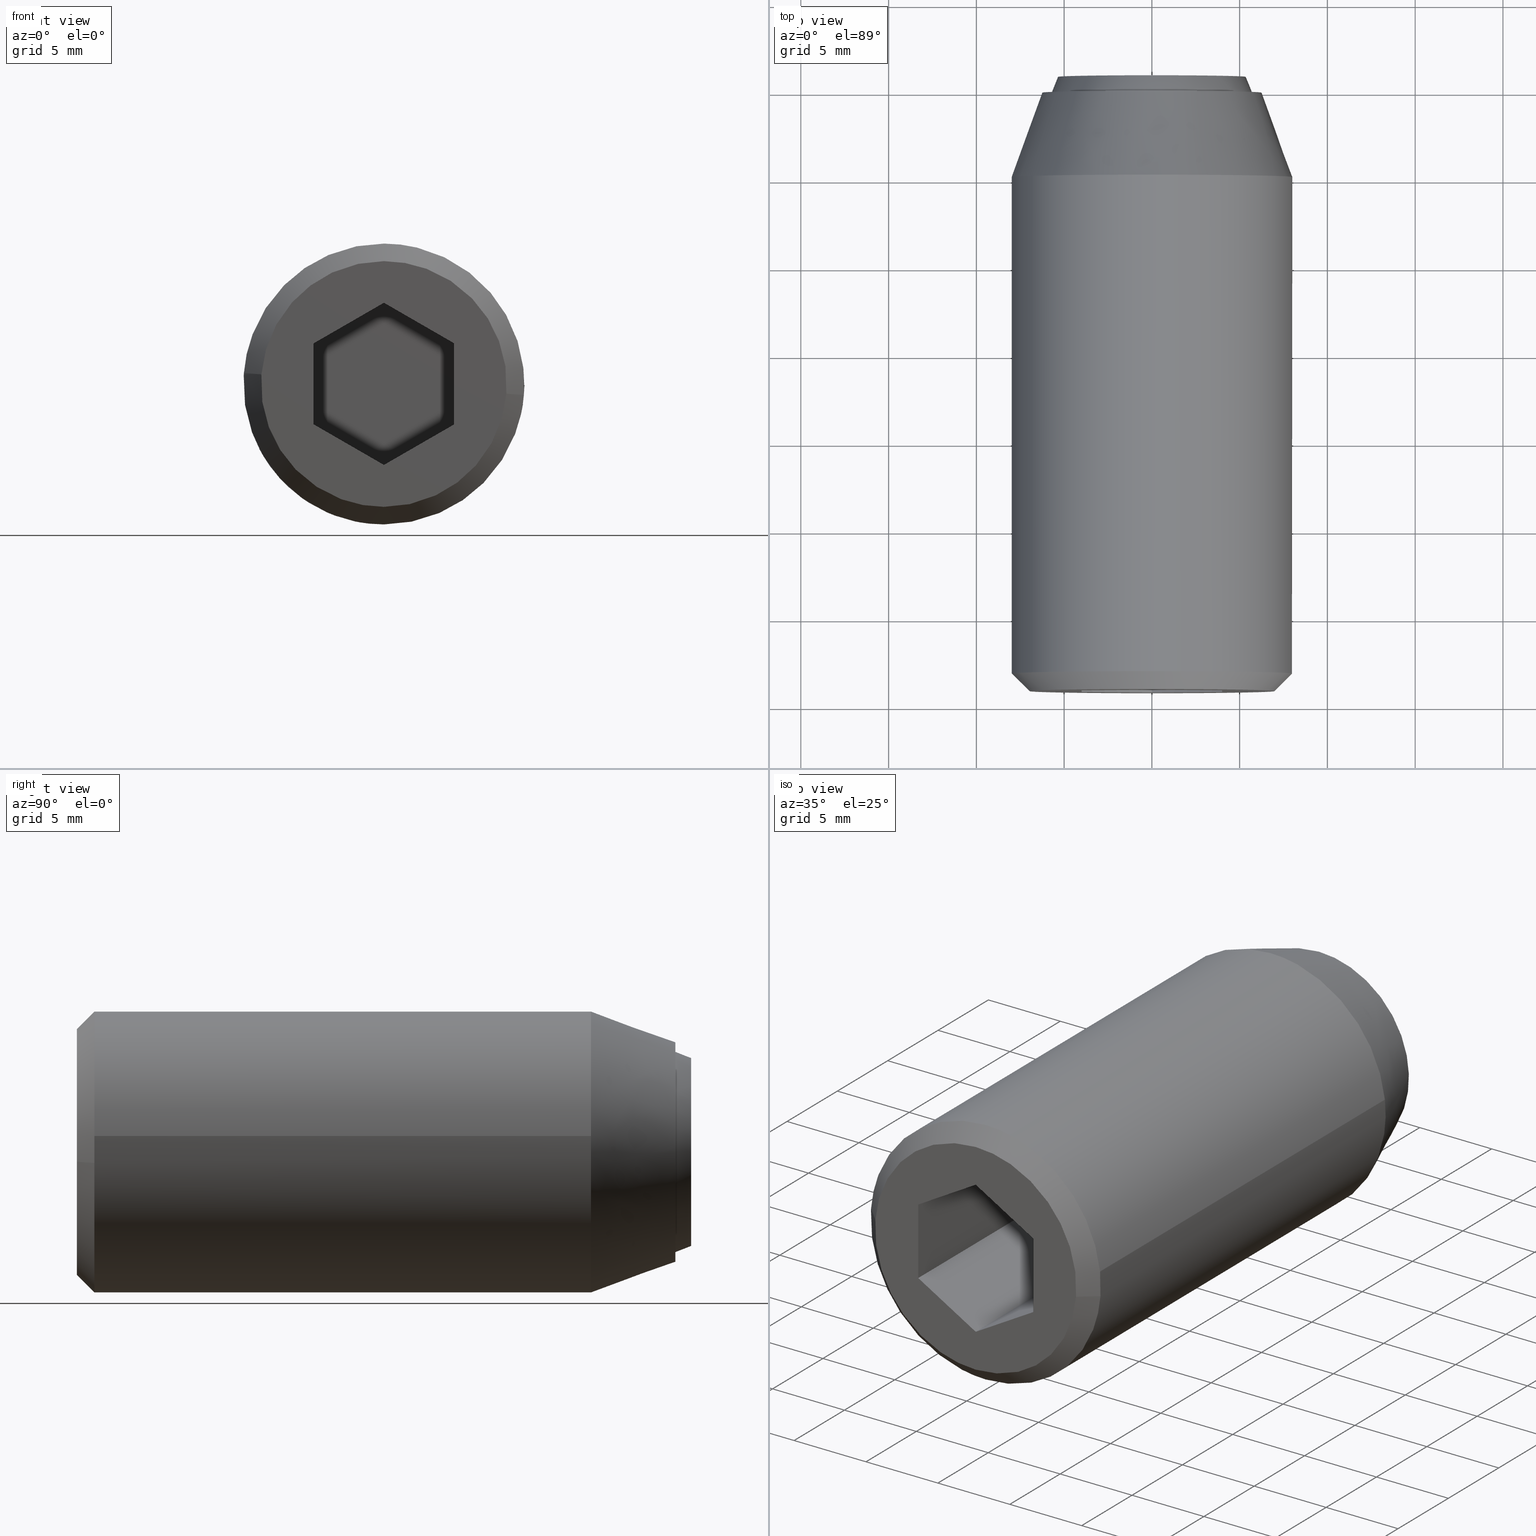
[diagram: canonical four-view strip — front | top / right | iso, engineering-drawing reading convention]
A machine part, canonical four-view strip (front | top / right | iso — engineering-drawing reading convention). The complete STEP part file that produces these views, byte-faithful:
ISO-10303-21;
HEADER;
/****************************************************************
 * Generated by software with PDE/Lib inside                    *
 * PDElib Version 4.4.1-0003, patched  Thursday August 19 11:58 *
 * International Technegroup Inc. (www.iti-oh.com)              *
 ****************************************************************/
FILE_DESCRIPTION((''),'2;1');
FILE_NAME('','2005-07-15T11:38:09',(''),(''),'','CADfix','');
FILE_SCHEMA(('AUTOMOTIVE_DESIGN'));
ENDSEC;
DATA;
#5=APPLICATION_CONTEXT('automotive design');
#6=APPLICATION_PROTOCOL_DEFINITION('Draft International Standard','automotive_design',1998,#5);
#7=PRODUCT_CONTEXT('None',#5,'mechanical');
#8=PRODUCT('body','','None',(#7));
#9=PRODUCT_RELATED_PRODUCT_CATEGORY('part','description',(#8));
#10=PRODUCT_DEFINITION_FORMATION('None','None',#8);
#11=PRODUCT_DEFINITION_CONTEXT('part definition',#5,'design');
#12=PRODUCT_DEFINITION('None','None',#10,#11);
#18=(NAMED_UNIT(*)PLANE_ANGLE_UNIT()SI_UNIT($,.RADIAN.));
#19=DIMENSIONAL_EXPONENTS(0.0,0.0,0.0,0.0,0.0,0.0,0.0);
#20=PLANE_ANGLE_MEASURE_WITH_UNIT(PLANE_ANGLE_MEASURE(0.017453292500000),#18);
#24=(CONVERSION_BASED_UNIT('DEGREE',#20)NAMED_UNIT(#19)PLANE_ANGLE_UNIT());
#28=(NAMED_UNIT(*)SI_UNIT($,.STERADIAN.)SOLID_ANGLE_UNIT());
#32=(LENGTH_UNIT()NAMED_UNIT(*)SI_UNIT(.MILLI.,.METRE.));
#34=UNCERTAINTY_MEASURE_WITH_UNIT(LENGTH_MEASURE(0.001000000000000),#32,'DISTANCE_ACCURACY_VALUE','');
#36=(GEOMETRIC_REPRESENTATION_CONTEXT(3)GLOBAL_UNCERTAINTY_ASSIGNED_CONTEXT((#34))GLOBAL_UNIT_ASSIGNED_CONTEXT((#24,#28,#32))REPRESENTATION_CONTEXT('None','None'));
#37=AXIS2_PLACEMENT_3D('',#38,#39,#40);
#38=CARTESIAN_POINT('',(0.0,0.0,0.0));
#39=DIRECTION('',(0.0,0.0,1.0));
#40=DIRECTION('',(1.0,0.0,0.0));
#41=ADVANCED_BREP_SHAPE_REPRESENTATION('',(#37,#949,#1121),#36);
#42=PRODUCT_DEFINITION_SHAPE('','',#12);
#43=SHAPE_DEFINITION_REPRESENTATION(#42,#41);
#44=CARTESIAN_POINT('',(-5.958057158181998,0.225000000000000,0.708205407940551));
#45=CARTESIAN_POINT('',(-5.978325692691634,0.225000000000000,0.537688371827866));
#46=CARTESIAN_POINT('',(-5.988808790531200,0.225000000000000,0.366291237209142));
#47=CARTESIAN_POINT('',(-6.355100027740342,0.225000000000000,-5.622517553322059));
#48=CARTESIAN_POINT('',(-0.366291237209142,0.225000000000000,-5.988808790531200));
#49=CARTESIAN_POINT('',(5.622517553322059,0.225000000000000,-6.355100027740342));
#50=CARTESIAN_POINT('',(5.988808790531200,0.225000000000000,-0.366291237209142));
#51=CARTESIAN_POINT('',(-5.958057158181998,-9.230625000000003,0.708205407940551));
#52=CARTESIAN_POINT('',(-5.978325692691634,-9.230625000000005,0.537688371827866));
#53=CARTESIAN_POINT('',(-5.988808790531200,-9.230625000000003,0.366291237209142));
#54=CARTESIAN_POINT('',(-6.355100027740342,-9.230625000000003,-5.622517553322059));
#55=CARTESIAN_POINT('',(-0.366291237209142,-9.230625000000003,-5.988808790531200));
#56=CARTESIAN_POINT('',(5.622517553322059,-9.230625000000003,-6.355100027740342));
#57=CARTESIAN_POINT('',(5.988808790531200,-9.230625000000003,-0.366291237209142));
#65=(BOUNDED_SURFACE()B_SPLINE_SURFACE(2,1,((#44,#51),(#45,#52),(#46,#53),(#47,#54),(#48,#55),(#49,#56),(#50,#57)),.UNSPECIFIED.,.F.,.F.,.U.)B_SPLINE_SURFACE_WITH_KNOTS((3,2,2,3),(2,2),(0.0,0.397645019878172,10.338770516832451,20.279896013786729),(0.0,9.455625000000005),.UNSPECIFIED.)GEOMETRIC_REPRESENTATION_ITEM()RATIONAL_B_SPLINE_SURFACE(((0.977505800795127,0.977505800795127),(0.988284271247462,0.988284271247462),(1.0,1.0),(0.707106781186548,0.707106781186548),(1.0,1.0),(0.707106781186548,0.707106781186548),(1.0,1.0)))REPRESENTATION_ITEM('')SURFACE());
#66=CARTESIAN_POINT('',(-5.958058204760654,-8.999999999999954,0.708196603074040));
#67=VERTEX_POINT('',#66);
#68=CARTESIAN_POINT('',(0.0,-9.0,-6.0));
#69=VERTEX_POINT('',#68);
#70=CARTESIAN_POINT('',(-5.958058204760655,-8.999999999999954,0.708196603074040));
#71=CARTESIAN_POINT('',(-6.000000000000001,-8.999999999999998,0.355340268937219));
#72=CARTESIAN_POINT('',(-6.0,-9.0,0.0));
#73=CARTESIAN_POINT('',(-6.0,-9.000000000000002,-6.0));
#74=CARTESIAN_POINT('',(0.0,-9.0,-6.0));
#82=(BOUNDED_CURVE()B_SPLINE_CURVE(2,(#70,#71,#72,#73,#74),.UNSPECIFIED.,.F.,.U.)B_SPLINE_CURVE_WITH_KNOTS((3,2,3),(0.229562723270076,0.250000000000000,0.500000000000000),.UNSPECIFIED.)CURVE()GEOMETRIC_REPRESENTATION_ITEM()RATIONAL_B_SPLINE_CURVE((0.956027243717377,0.976056240939165,1.0,0.707106781186548,1.0))REPRESENTATION_ITEM(''));
#83=EDGE_CURVE('',#67,#69,#82,.T.);
#84=ORIENTED_EDGE('',*,*,#83,.T.);
#85=CARTESIAN_POINT('',(5.988808964275070,-9.000000000000009,-0.366288396499877));
#86=VERTEX_POINT('',#85);
#87=CARTESIAN_POINT('',(0.0,-9.0,-6.0));
#88=CARTESIAN_POINT('',(5.644239083703742,-9.000000000000002,-6.000000000000001));
#89=CARTESIAN_POINT('',(5.988808964275071,-9.000000000000011,-0.366288396499877));
#97=(BOUNDED_CURVE()B_SPLINE_CURVE(2,(#87,#88,#89),.UNSPECIFIED.,.F.,.U.)B_SPLINE_CURVE_WITH_KNOTS((3,3),(0.500000000000000,0.739333044087175),.UNSPECIFIED.)CURVE()GEOMETRIC_REPRESENTATION_ITEM()RATIONAL_B_SPLINE_CURVE((1.0,0.719603897395541,0.976072217083123))REPRESENTATION_ITEM(''));
#98=EDGE_CURVE('',#69,#86,#97,.T.);
#99=ORIENTED_EDGE('',*,*,#98,.T.);
#100=CARTESIAN_POINT('',(5.988808962128291,-2.220446E-016,-0.366288431599955));
#101=VERTEX_POINT('',#100);
#102=CARTESIAN_POINT('',(5.988808962128291,-2.220446E-016,-0.366288431599955));
#103=CARTESIAN_POINT('',(5.988808964275070,-9.000000000000009,-0.366288396499877));
#104=QUASI_UNIFORM_CURVE('',1,(#102,#103),.UNSPECIFIED.,.F.,.U.);
#105=EDGE_CURVE('',#101,#86,#104,.T.);
#106=ORIENTED_EDGE('',*,*,#105,.F.);
#107=CARTESIAN_POINT('',(0.0,0.0,-6.0));
#108=VERTEX_POINT('',#107);
#109=CARTESIAN_POINT('',(0.0,0.0,-6.0));
#110=CARTESIAN_POINT('',(5.644239050561357,0.0,-6.000000000000001));
#111=CARTESIAN_POINT('',(5.988808962128291,-2.220446E-016,-0.366288431599955));
#119=(BOUNDED_CURVE()B_SPLINE_CURVE(2,(#109,#110,#111),.UNSPECIFIED.,.F.,.U.)B_SPLINE_CURVE_WITH_KNOTS((3,3),(0.500000000000000,0.739333043075888),.UNSPECIFIED.)CURVE()GEOMETRIC_REPRESENTATION_ITEM()RATIONAL_B_SPLINE_CURVE((1.0,0.719603898580338,0.976072214915740))REPRESENTATION_ITEM(''));
#120=EDGE_CURVE('',#108,#101,#119,.T.);
#121=ORIENTED_EDGE('',*,*,#120,.F.);
#122=CARTESIAN_POINT('',(-5.958058191856523,-2.271543E-016,0.708196711637859));
#123=VERTEX_POINT('',#122);
#124=CARTESIAN_POINT('',(-5.958058191856523,-2.271543E-016,0.708196711637859));
#125=CARTESIAN_POINT('',(-6.0,0.0,0.355340323792966));
#126=CARTESIAN_POINT('',(-6.0,0.0,0.0));
#127=CARTESIAN_POINT('',(-6.0,0.0,-6.0));
#128=CARTESIAN_POINT('',(0.0,0.0,-6.0));
#136=(BOUNDED_CURVE()B_SPLINE_CURVE(2,(#124,#125,#126,#127,#128),.UNSPECIFIED.,.F.,.U.)B_SPLINE_CURVE_WITH_KNOTS((3,2,3),(0.229562720190609,0.250000000000000,0.500000000000000),.UNSPECIFIED.)CURVE()GEOMETRIC_REPRESENTATION_ITEM()RATIONAL_B_SPLINE_CURVE((0.956027237681481,0.976056237331345,1.0,0.707106781186548,1.0))REPRESENTATION_ITEM(''));
#137=EDGE_CURVE('',#123,#108,#136,.T.);
#138=ORIENTED_EDGE('',*,*,#137,.F.);
#139=CARTESIAN_POINT('',(-5.958058191856523,-2.271543E-016,0.708196711637859));
#140=CARTESIAN_POINT('',(-5.958058204760654,-8.999999999999954,0.708196603074040));
#141=QUASI_UNIFORM_CURVE('',1,(#139,#140),.UNSPECIFIED.,.F.,.U.);
#142=EDGE_CURVE('',#123,#67,#141,.T.);
#143=ORIENTED_EDGE('',*,*,#142,.T.);
#144=EDGE_LOOP('',(#84,#99,#106,#121,#138,#143));
#145=FACE_OUTER_BOUND('',#144,.T.);
#146=ADVANCED_FACE('',(#145),#65,.F.);
#147=CARTESIAN_POINT('',(5.983761397542906,0.225000000000000,-0.448815383098853));
#148=CARTESIAN_POINT('',(5.986277871110004,0.225000000000000,-0.407671403967304));
#149=CARTESIAN_POINT('',(6.355100027740342,0.225000000000000,5.622517553322059));
#150=CARTESIAN_POINT('',(0.366291237209142,0.225000000000000,5.988808790531200));
#151=CARTESIAN_POINT('',(-5.289260945037006,0.225000000000000,6.334717180395164));
#152=CARTESIAN_POINT('',(-5.963064700141355,0.225000000000000,0.666077487310010));
#153=CARTESIAN_POINT('',(-5.968045329017009,0.225000000000000,0.624175983604841));
#154=CARTESIAN_POINT('',(5.983761397542906,-9.230625000000003,-0.448815383098853));
#155=CARTESIAN_POINT('',(5.986277871110004,-9.230625000000000,-0.407671403967304));
#156=CARTESIAN_POINT('',(6.355100027740342,-9.230625000000003,5.622517553322059));
#157=CARTESIAN_POINT('',(0.366291237209142,-9.230625000000003,5.988808790531200));
#158=CARTESIAN_POINT('',(-5.289260945037006,-9.230625000000003,6.334717180395164));
#159=CARTESIAN_POINT('',(-5.963064700141355,-9.230625000000003,0.666077487310010));
#160=CARTESIAN_POINT('',(-5.968045329017009,-9.230625000000003,0.624175983604841));
#168=(BOUNDED_SURFACE()B_SPLINE_SURFACE(2,1,((#147,#154),(#148,#155),(#149,#156),(#150,#157),(#151,#158),(#152,#159),(#153,#160)),.UNSPECIFIED.,.F.,.F.,.U.)B_SPLINE_SURFACE_WITH_KNOTS((3,1,2,1,3),(2,2),(0.0,0.097419768881882,10.038545265836159,19.582025742912268,19.679458959397699),(0.0,9.455625000000007),.UNSPECIFIED.)GEOMETRIC_REPRESENTATION_ITEM()RATIONAL_B_SPLINE_SURFACE(((1.005740514933167,1.005740514933167),(1.002870257466584,1.002870257466584),(0.707106781186548,0.707106781186548),(1.0,1.0),(0.718822509939086,0.718822509939086),(0.980146802171897,0.980146802171897),(0.982787803548668,0.982787803548668)))REPRESENTATION_ITEM('')SURFACE());
#169=CARTESIAN_POINT('',(0.0,-9.0,6.0));
#170=VERTEX_POINT('',#169);
#171=CARTESIAN_POINT('',(0.0,-9.0,6.0));
#172=CARTESIAN_POINT('',(-5.329055086462003,-9.0,6.0));
#173=CARTESIAN_POINT('',(-5.958058204760655,-8.999999999999954,0.708196603074040));
#181=(BOUNDED_CURVE()B_SPLINE_CURVE(2,(#171,#172,#173),.UNSPECIFIED.,.F.,.U.)B_SPLINE_CURVE_WITH_KNOTS((3,3),(0.0,0.229562723270076),.UNSPECIFIED.)CURVE()GEOMETRIC_REPRESENTATION_ITEM()RATIONAL_B_SPLINE_CURVE((1.0,0.731050540247383,0.956027243717377))REPRESENTATION_ITEM(''));
#182=EDGE_CURVE('',#170,#67,#181,.T.);
#183=ORIENTED_EDGE('',*,*,#182,.T.);
#184=ORIENTED_EDGE('',*,*,#142,.F.);
#185=CARTESIAN_POINT('',(0.0,0.0,6.0));
#186=VERTEX_POINT('',#185);
#187=CARTESIAN_POINT('',(0.0,0.0,6.0));
#188=CARTESIAN_POINT('',(-5.329054988675929,0.0,5.999999999999999));
#189=CARTESIAN_POINT('',(-5.958058191856523,-2.271543E-016,0.708196711637859));
#197=(BOUNDED_CURVE()B_SPLINE_CURVE(2,(#187,#188,#189),.UNSPECIFIED.,.F.,.U.)B_SPLINE_CURVE_WITH_KNOTS((3,3),(0.0,0.229562720190609),.UNSPECIFIED.)CURVE()GEOMETRIC_REPRESENTATION_ITEM()RATIONAL_B_SPLINE_CURVE((1.0,0.731050543855203,0.956027237681481))REPRESENTATION_ITEM(''));
#198=EDGE_CURVE('',#186,#123,#197,.T.);
#199=ORIENTED_EDGE('',*,*,#198,.F.);
#200=CARTESIAN_POINT('',(5.988808962128291,-2.220446E-016,-0.366288431599955));
#201=CARTESIAN_POINT('',(6.0,0.0,-0.183315173053662));
#202=CARTESIAN_POINT('',(6.0,0.0,0.0));
#203=CARTESIAN_POINT('',(6.0,0.0,6.0));
#204=CARTESIAN_POINT('',(0.0,0.0,6.0));
#212=(BOUNDED_CURVE()B_SPLINE_CURVE(2,(#200,#201,#202,#203,#204),.UNSPECIFIED.,.F.,.U.)B_SPLINE_CURVE_WITH_KNOTS((3,2,3),(0.739333043075888,0.750000000000000,1.0),.UNSPECIFIED.)CURVE()GEOMETRIC_REPRESENTATION_ITEM()RATIONAL_B_SPLINE_CURVE((0.976072214915740,0.987502882606209,1.0,0.707106781186548,1.0))REPRESENTATION_ITEM(''));
#213=EDGE_CURVE('',#101,#186,#212,.T.);
#214=ORIENTED_EDGE('',*,*,#213,.F.);
#215=ORIENTED_EDGE('',*,*,#105,.T.);
#216=CARTESIAN_POINT('',(5.988808964275071,-9.000000000000011,-0.366288396499877));
#217=CARTESIAN_POINT('',(6.0,-9.0,-0.183315155454417));
#218=CARTESIAN_POINT('',(6.0,-9.0,0.0));
#219=CARTESIAN_POINT('',(6.0,-9.000000000000002,6.0));
#220=CARTESIAN_POINT('',(0.0,-9.0,6.0));
#228=(BOUNDED_CURVE()B_SPLINE_CURVE(2,(#216,#217,#218,#219,#220),.UNSPECIFIED.,.F.,.U.)B_SPLINE_CURVE_WITH_KNOTS((3,2,3),(0.739333044087175,0.750000000000000,1.0),.UNSPECIFIED.)CURVE()GEOMETRIC_REPRESENTATION_ITEM()RATIONAL_B_SPLINE_CURVE((0.976072217083123,0.987502883791006,1.0,0.707106781186548,1.0))REPRESENTATION_ITEM(''));
#229=EDGE_CURVE('',#86,#170,#228,.T.);
#230=ORIENTED_EDGE('',*,*,#229,.T.);
#231=EDGE_LOOP('',(#183,#184,#199,#214,#215,#230));
#232=FACE_OUTER_BOUND('',#231,.T.);
#233=ADVANCED_FACE('',(#232),#168,.F.);
#234=CARTESIAN_POINT('',(-5.033104737249632,0.120202150000000,-3.631170027191690));
#235=CARTESIAN_POINT('',(-3.313123014859355,0.120202150000000,-6.015208254572740));
#236=CARTESIAN_POINT('',(-0.378882498488206,0.120202150000000,-6.194674092705710));
#237=CARTESIAN_POINT('',(5.815791594217503,0.120202150000000,-6.573556591193916));
#238=CARTESIAN_POINT('',(6.194674092705709,0.120202150000000,-0.378882498488207));
#239=CARTESIAN_POINT('',(6.573556591193915,0.120202150000000,5.815791594217502));
#240=CARTESIAN_POINT('',(0.378882498488206,0.120202150000000,6.194674092705708));
#241=CARTESIAN_POINT('',(-5.815791594217503,0.120202150000000,6.573556591193914));
#242=CARTESIAN_POINT('',(-6.194674092705709,0.120202150000000,0.378882498488205));
#243=CARTESIAN_POINT('',(-6.524155679928798,-4.931293203749999,-4.706899576787980));
#244=CARTESIAN_POINT('',(-4.294631537413486,-4.931293203750000,-7.797206127975497));
#245=CARTESIAN_POINT('',(-0.491125961723622,-4.931293203750000,-8.029838494741666));
#246=CARTESIAN_POINT('',(7.538712533018043,-4.931293203750001,-8.520964456465288));
#247=CARTESIAN_POINT('',(8.029838494741664,-4.931293203750000,-0.491125961723623));
#248=CARTESIAN_POINT('',(8.520964456465288,-4.931293203750001,7.538712533018041));
#249=CARTESIAN_POINT('',(0.491125961723622,-4.931293203750000,8.029838494741663));
#250=CARTESIAN_POINT('',(-7.538712533018043,-4.931293203750001,8.520964456465284));
#251=CARTESIAN_POINT('',(-8.029838494741664,-4.931293203750000,0.491125961723621));
#259=(BOUNDED_SURFACE()B_SPLINE_SURFACE(2,1,((#234,#243),(#235,#244),(#236,#245),(#237,#246),(#238,#247),(#239,#248),(#240,#249),(#241,#250),(#242,#251)),.UNSPECIFIED.,.F.,.F.,.U.)B_SPLINE_SURFACE_WITH_KNOTS((3,2,2,2,3),(2,2),(0.0,7.464314790066237,20.793448343755941,34.122581897445663,47.451715451135371),(0.0,5.375689005745859),.UNSPECIFIED.)GEOMETRIC_REPRESENTATION_ITEM()RATIONAL_B_SPLINE_SURFACE(((0.855662221768731,0.855662221768731),(0.835979797464467,0.835979797464467),(1.0,1.0),(0.707106781186548,0.707106781186548),(1.0,1.0),(0.707106781186548,0.707106781186548),(1.0,1.0),(0.707106781186548,0.707106781186548),(1.0,1.0)))REPRESENTATION_ITEM('')SURFACE());
#260=CARTESIAN_POINT('',(-5.068584831065254,-3.391263E-013,-3.656767398987356));
#261=VERTEX_POINT('',#260);
#262=CARTESIAN_POINT('',(0.0,0.0,-6.250000000000001));
#263=VERTEX_POINT('',#262);
#264=CARTESIAN_POINT('',(-5.068584831065254,-3.391263E-013,-3.656767398987356));
#265=CARTESIAN_POINT('',(-3.197678305980489,0.0,-6.250000000000002));
#266=CARTESIAN_POINT('',(0.0,0.0,-6.250000000000001));
#274=(BOUNDED_CURVE()B_SPLINE_CURVE(2,(#264,#265,#266),.UNSPECIFIED.,.F.,.U.)B_SPLINE_CURVE_WITH_KNOTS((3,3),(0.850743050382160,1.0),.UNSPECIFIED.)CURVE()GEOMETRIC_REPRESENTATION_ITEM()RATIONAL_B_SPLINE_CURVE((0.859068214727271,0.825134606384615,1.0))REPRESENTATION_ITEM(''));
#275=EDGE_CURVE('',#261,#263,#274,.T.);
#276=ORIENTED_EDGE('',*,*,#275,.T.);
#277=CARTESIAN_POINT('',(0.0,0.0,6.249999999999999));
#278=VERTEX_POINT('',#277);
#279=CARTESIAN_POINT('',(0.0,0.0,-6.250000000000001));
#280=CARTESIAN_POINT('',(6.249999999999999,0.0,-6.250000000000002));
#281=CARTESIAN_POINT('',(6.250000000000000,0.0,-1.291960E-015));
#282=CARTESIAN_POINT('',(6.249999999999999,0.0,6.249999999999999));
#283=CARTESIAN_POINT('',(0.0,0.0,6.249999999999999));
#291=(BOUNDED_CURVE()B_SPLINE_CURVE(2,(#279,#280,#281,#282,#283),.UNSPECIFIED.,.F.,.U.)B_SPLINE_CURVE_WITH_KNOTS((3,2,3),(0.0,0.250000000000000,0.500000000000000),.UNSPECIFIED.)CURVE()GEOMETRIC_REPRESENTATION_ITEM()RATIONAL_B_SPLINE_CURVE((1.0,0.707106781186547,1.0,0.707106781186547,1.0))REPRESENTATION_ITEM(''));
#292=EDGE_CURVE('',#263,#278,#291,.T.);
#293=ORIENTED_EDGE('',*,*,#292,.T.);
#294=CARTESIAN_POINT('',(-6.238341910631632,0.000001987883536,0.381550995179467));
#295=VERTEX_POINT('',#294);
#296=CARTESIAN_POINT('',(0.0,0.0,6.249999999999999));
#297=CARTESIAN_POINT('',(-5.879414759705009,0.000000993941768,6.249999977914886));
#298=CARTESIAN_POINT('',(-6.238341910631632,0.000001987883536,0.381550995179467));
#306=(BOUNDED_CURVE()B_SPLINE_CURVE(2,(#296,#297,#298),.UNSPECIFIED.,.F.,.U.)B_SPLINE_CURVE_WITH_KNOTS((3,3),(0.500000000000000,0.739333026763493),.UNSPECIFIED.)CURVE()GEOMETRIC_REPRESENTATION_ITEM()RATIONAL_B_SPLINE_CURVE((1.0,0.719603917691498,0.976072179955150))REPRESENTATION_ITEM(''));
#307=EDGE_CURVE('',#278,#295,#306,.T.);
#308=ORIENTED_EDGE('',*,*,#307,.T.);
#309=CARTESIAN_POINT('',(-7.985078436995666,-4.808085999013084,0.488387499100347));
#310=VERTEX_POINT('',#309);
#311=CARTESIAN_POINT('',(-6.238341910631632,0.000001987883536,0.381550995179467));
#312=CARTESIAN_POINT('',(-7.985078436995666,-4.808085999013084,0.488387499100347));
#313=QUASI_UNIFORM_CURVE('',1,(#311,#312),.UNSPECIFIED.,.F.,.U.);
#314=EDGE_CURVE('',#295,#310,#313,.T.);
#315=ORIENTED_EDGE('',*,*,#314,.T.);
#316=CARTESIAN_POINT('',(0.0,-4.808085999999999,7.999999999999998));
#317=VERTEX_POINT('',#316);
#318=CARTESIAN_POINT('',(0.0,-4.808085999999999,7.999999999999998));
#319=CARTESIAN_POINT('',(-7.525649306825357,-4.808086000000000,7.999999999999999));
#320=CARTESIAN_POINT('',(-7.985078436995666,-4.808085999013084,0.488387499100347));
#328=(BOUNDED_CURVE()B_SPLINE_CURVE(2,(#318,#319,#320),.UNSPECIFIED.,.F.,.U.)B_SPLINE_CURVE_WITH_KNOTS((3,3),(0.500000000000000,0.739332979899622),.UNSPECIFIED.)CURVE()GEOMETRIC_REPRESENTATION_ITEM()RATIONAL_B_SPLINE_CURVE((1.0,0.719603972595938,0.976072079516917))REPRESENTATION_ITEM(''));
#329=EDGE_CURVE('',#317,#310,#328,.T.);
#330=ORIENTED_EDGE('',*,*,#329,.F.);
#331=CARTESIAN_POINT('',(7.947754839124859,-4.808085999999999,0.912794071540353));
#332=VERTEX_POINT('',#331);
#333=CARTESIAN_POINT('',(7.947754839124859,-4.808085999999999,0.912794071540353));
#334=CARTESIAN_POINT('',(7.133794206699027,-4.808086000000000,7.999999999999999));
#335=CARTESIAN_POINT('',(0.0,-4.808085999999999,7.999999999999998));
#343=(BOUNDED_CURVE()B_SPLINE_CURVE(2,(#333,#334,#335),.UNSPECIFIED.,.F.,.U.)B_SPLINE_CURVE_WITH_KNOTS((3,3),(0.269767516400934,0.500000000000000),.UNSPECIFIED.)CURVE()GEOMETRIC_REPRESENTATION_ITEM()RATIONAL_B_SPLINE_CURVE((0.957344208849934,0.730265867213016,1.0))REPRESENTATION_ITEM(''));
#344=EDGE_CURVE('',#332,#317,#343,.T.);
#345=ORIENTED_EDGE('',*,*,#344,.F.);
#346=CARTESIAN_POINT('',(0.0,-4.808085999999999,-8.000000000000002));
#347=VERTEX_POINT('',#346);
#348=CARTESIAN_POINT('',(0.0,-4.808085999999999,-8.000000000000002));
#349=CARTESIAN_POINT('',(8.0,-4.808086000000000,-8.000000000000002));
#350=CARTESIAN_POINT('',(8.0,-4.808085999999999,-1.291960E-015));
#351=CARTESIAN_POINT('',(8.0,-4.808085999999999,0.457892201503595));
#352=CARTESIAN_POINT('',(7.947754839124859,-4.808085999999999,0.912794071540353));
#360=(BOUNDED_CURVE()B_SPLINE_CURVE(2,(#348,#349,#350,#351,#352),.UNSPECIFIED.,.F.,.U.)B_SPLINE_CURVE_WITH_KNOTS((3,2,3),(0.0,0.250000000000000,0.269767516400934),.UNSPECIFIED.)CURVE()GEOMETRIC_REPRESENTATION_ITEM()RATIONAL_B_SPLINE_CURVE((1.0,0.707106781186548,1.0,0.976840913973531,0.957344208849934))REPRESENTATION_ITEM(''));
#361=EDGE_CURVE('',#347,#332,#360,.T.);
#362=ORIENTED_EDGE('',*,*,#361,.F.);
#363=CARTESIAN_POINT('',(-6.487788583763864,-4.808086000000373,-4.680662270703309));
#364=VERTEX_POINT('',#363);
#365=CARTESIAN_POINT('',(-6.487788583763864,-4.808086000000373,-4.680662270703309));
#366=CARTESIAN_POINT('',(-4.093028231655796,-4.808085999999999,-8.000000000000004));
#367=CARTESIAN_POINT('',(0.0,-4.808085999999999,-8.000000000000002));
#375=(BOUNDED_CURVE()B_SPLINE_CURVE(2,(#365,#366,#367),.UNSPECIFIED.,.F.,.U.)B_SPLINE_CURVE_WITH_KNOTS((3,3),(0.850743050382137,1.0),.UNSPECIFIED.)CURVE()GEOMETRIC_REPRESENTATION_ITEM()RATIONAL_B_SPLINE_CURVE((0.859068214727282,0.825134606384587,1.0))REPRESENTATION_ITEM(''));
#376=EDGE_CURVE('',#364,#347,#375,.T.);
#377=ORIENTED_EDGE('',*,*,#376,.F.);
#378=CARTESIAN_POINT('',(-5.068584831065254,-3.391263E-013,-3.656767398987356));
#379=CARTESIAN_POINT('',(-6.487788583763864,-4.808086000000373,-4.680662270703309));
#380=QUASI_UNIFORM_CURVE('',1,(#378,#379),.UNSPECIFIED.,.F.,.U.);
#381=EDGE_CURVE('',#261,#364,#380,.T.);
#382=ORIENTED_EDGE('',*,*,#381,.F.);
#383=EDGE_LOOP('',(#276,#293,#308,#315,#330,#345,#362,#377,#382));
#384=FACE_OUTER_BOUND('',#383,.T.);
#385=ADVANCED_FACE('',(#384),#259,.T.);
#386=CARTESIAN_POINT('',(-6.194674092705709,0.120202150000000,0.378882498488205));
#387=CARTESIAN_POINT('',(-6.329993708723172,0.120202150000000,-1.833573666478589));
#388=CARTESIAN_POINT('',(-5.033104737249632,0.120202150000000,-3.631170027191690));
#389=CARTESIAN_POINT('',(-8.029838494741664,-4.931293203750000,0.491125961723621));
#390=CARTESIAN_POINT('',(-8.205246376662386,-4.931293203750000,-2.376767557048920));
#391=CARTESIAN_POINT('',(-6.524155679928798,-4.931293203749999,-4.706899576787980));
#399=(BOUNDED_SURFACE()B_SPLINE_SURFACE(2,1,((#386,#389),(#387,#390),(#388,#391)),.UNSPECIFIED.,.F.,.F.,.U.)B_SPLINE_SURFACE_WITH_KNOTS((3,3),(2,2),(0.0,5.850364563902502),(0.0,5.375689005745859),.UNSPECIFIED.)GEOMETRIC_REPRESENTATION_ITEM()RATIONAL_B_SPLINE_SURFACE(((1.0,1.0),(0.871126983722081,0.871126983722081),(0.855662221768731,0.855662221768731)))REPRESENTATION_ITEM('')SURFACE());
#400=CARTESIAN_POINT('',(-6.238341910631632,0.000001987883536,0.381550995179467));
#401=CARTESIAN_POINT('',(-6.249999308708107,0.000001902857312,0.190953558693370));
#402=CARTESIAN_POINT('',(-6.249999340213384,0.000001816135797,-0.000000040353817));
#403=CARTESIAN_POINT('',(-6.249999673364036,0.000000899104357,-2.019227386719627));
#404=CARTESIAN_POINT('',(-5.068584831065254,-3.391263E-013,-3.656767398987356));
#412=(BOUNDED_CURVE()B_SPLINE_CURVE(2,(#400,#401,#402,#403,#404),.UNSPECIFIED.,.F.,.U.)B_SPLINE_CURVE_WITH_KNOTS((3,2,3),(0.739333026763493,0.750000000000000,0.850743050382160),.UNSPECIFIED.)CURVE()GEOMETRIC_REPRESENTATION_ITEM()RATIONAL_B_SPLINE_CURVE((0.976072179955150,0.987502863495050,1.0,0.881972174801933,0.859068214727271))REPRESENTATION_ITEM(''));
#413=EDGE_CURVE('',#295,#261,#412,.T.);
#414=ORIENTED_EDGE('',*,*,#413,.T.);
#415=ORIENTED_EDGE('',*,*,#381,.T.);
#416=CARTESIAN_POINT('',(-7.985078436995666,-4.808085999013084,0.488387499100347));
#417=CARTESIAN_POINT('',(-8.0,-4.808085999999999,0.244421696664813));
#418=CARTESIAN_POINT('',(-8.0,-4.808085999999999,-1.291960E-015));
#419=CARTESIAN_POINT('',(-8.0,-4.808085999999999,-2.584611029430652));
#420=CARTESIAN_POINT('',(-6.487788583763864,-4.808086000000373,-4.680662270703309));
#428=(BOUNDED_CURVE()B_SPLINE_CURVE(2,(#416,#417,#418,#419,#420),.UNSPECIFIED.,.F.,.U.)B_SPLINE_CURVE_WITH_KNOTS((3,2,3),(0.739332979899622,0.750000000000000,0.850743050382138),.UNSPECIFIED.)CURVE()GEOMETRIC_REPRESENTATION_ITEM()RATIONAL_B_SPLINE_CURVE((0.976072079516917,0.987502808590609,1.0,0.881972174801960,0.859068214727282))REPRESENTATION_ITEM(''));
#429=EDGE_CURVE('',#310,#364,#428,.T.);
#430=ORIENTED_EDGE('',*,*,#429,.F.);
#431=ORIENTED_EDGE('',*,*,#314,.F.);
#432=EDGE_LOOP('',(#414,#415,#430,#431));
#433=FACE_OUTER_BOUND('',#432,.T.);
#434=ADVANCED_FACE('',(#433),#399,.T.);
#435=CARTESIAN_POINT('',(7.947753547485708,-4.100788149999999,0.912805317922882));
#436=CARTESIAN_POINT('',(7.182521220688651,-4.100788149999997,7.575647679305657));
#437=CARTESIAN_POINT('',(0.488388316278856,-4.100788149999998,7.985078387374933));
#438=CARTESIAN_POINT('',(-7.496690071096078,-4.100788149999999,8.473466703653788));
#439=CARTESIAN_POINT('',(-7.985078387374934,-4.100788149999998,0.488388316278855));
#440=CARTESIAN_POINT('',(7.947753547485708,-33.824980296250004,0.912805317922882));
#441=CARTESIAN_POINT('',(7.182521220688651,-33.824980296250004,7.575647679305657));
#442=CARTESIAN_POINT('',(0.488388316278856,-33.824980296249997,7.985078387374933));
#443=CARTESIAN_POINT('',(-7.496690071096078,-33.824980296249997,8.473466703653788));
#444=CARTESIAN_POINT('',(-7.985078387374934,-33.824980296249997,0.488388316278855));
#452=(BOUNDED_SURFACE()B_SPLINE_SURFACE(2,1,((#435,#440),(#436,#441),(#437,#442),(#438,#443),(#439,#444)),.UNSPECIFIED.,.F.,.F.,.U.)B_SPLINE_SURFACE_WITH_KNOTS((3,2,3),(2,2),(0.0,11.664253916426350,24.919087912365391),(0.0,29.724192146250019),.UNSPECIFIED.)GEOMETRIC_REPRESENTATION_ITEM()RATIONAL_B_SPLINE_SURFACE(((0.938140952186599,0.938140952186599),(0.742253967444162,0.742253967444162),(1.0,1.0),(0.707106781186548,0.707106781186548),(1.0,1.0)))REPRESENTATION_ITEM('')SURFACE());
#453=CARTESIAN_POINT('',(7.947753547483732,-33.099999999999987,0.912805317940099));
#454=VERTEX_POINT('',#453);
#455=CARTESIAN_POINT('',(0.0,-33.099999999999987,7.999999999999998));
#456=VERTEX_POINT('',#455);
#457=CARTESIAN_POINT('',(7.947753547483732,-33.099999999999994,0.912805317940099));
#458=CARTESIAN_POINT('',(7.133784045720198,-33.099999999999994,7.999999999999999));
#459=CARTESIAN_POINT('',(0.0,-33.099999999999987,7.999999999999998));
#467=(BOUNDED_CURVE()B_SPLINE_CURVE(2,(#457,#458,#459),.UNSPECIFIED.,.F.,.U.)B_SPLINE_CURVE_WITH_KNOTS((3,3),(0.269767755877342,0.500000000000000),.UNSPECIFIED.)CURVE()GEOMETRIC_REPRESENTATION_ITEM()RATIONAL_B_SPLINE_CURVE((0.957343736459217,0.730266147777081,1.0))REPRESENTATION_ITEM(''));
#468=EDGE_CURVE('',#454,#456,#467,.T.);
#469=ORIENTED_EDGE('',*,*,#468,.F.);
#470=CARTESIAN_POINT('',(7.947754839124859,-4.808085999999999,0.912794071540353));
#471=CARTESIAN_POINT('',(7.947753547483732,-33.099999999999987,0.912805317940099));
#472=QUASI_UNIFORM_CURVE('',1,(#470,#471),.UNSPECIFIED.,.F.,.U.);
#473=EDGE_CURVE('',#332,#454,#472,.T.);
#474=ORIENTED_EDGE('',*,*,#473,.F.);
#475=ORIENTED_EDGE('',*,*,#344,.T.);
#476=ORIENTED_EDGE('',*,*,#329,.T.);
#477=CARTESIAN_POINT('',(-7.985078429134152,-33.099999999999987,0.488387633520728));
#478=VERTEX_POINT('',#477);
#479=CARTESIAN_POINT('',(-7.985078436995666,-4.808085999013084,0.488387499100347));
#480=CARTESIAN_POINT('',(-7.985078429134152,-33.099999999999987,0.488387633520728));
#481=QUASI_UNIFORM_CURVE('',1,(#479,#480),.UNSPECIFIED.,.F.,.U.);
#482=EDGE_CURVE('',#310,#478,#481,.T.);
#483=ORIENTED_EDGE('',*,*,#482,.T.);
#484=CARTESIAN_POINT('',(-7.975338669866337,-33.099999999996683,0.627672765848300));
#485=VERTEX_POINT('',#484);
#486=CARTESIAN_POINT('',(-7.975338669866338,-33.099999999996683,0.627672765848300));
#487=CARTESIAN_POINT('',(-7.980816340779448,-33.100000000000009,0.558072357712341));
#488=CARTESIAN_POINT('',(-7.985078429134153,-33.099999999999994,0.488387633520728));
#496=(BOUNDED_CURVE()B_SPLINE_CURVE(2,(#486,#487,#488),.UNSPECIFIED.,.F.,.U.)B_SPLINE_CURVE_WITH_KNOTS((3,3),(0.736331300631680,0.739332991748937),.UNSPECIFIED.)CURVE()GEOMETRIC_REPRESENTATION_ITEM()RATIONAL_B_SPLINE_CURVE((0.969723356169547,0.972855506353582,0.976072104912261))REPRESENTATION_ITEM(''));
#497=EDGE_CURVE('',#485,#478,#496,.T.);
#498=ORIENTED_EDGE('',*,*,#497,.F.);
#499=CARTESIAN_POINT('',(0.0,-33.099999999999987,7.999999999999998));
#500=CARTESIAN_POINT('',(-7.395123933218637,-33.100000000000001,7.999999999999999));
#501=CARTESIAN_POINT('',(-7.975338669866337,-33.099999999996690,0.627672765848300));
#509=(BOUNDED_CURVE()B_SPLINE_CURVE(2,(#499,#500,#501),.UNSPECIFIED.,.F.,.U.)B_SPLINE_CURVE_WITH_KNOTS((3,3),(0.500000000000000,0.736331300631680),.UNSPECIFIED.)CURVE()GEOMETRIC_REPRESENTATION_ITEM()RATIONAL_B_SPLINE_CURVE((1.0,0.723120658606470,0.969723356169548))REPRESENTATION_ITEM(''));
#510=EDGE_CURVE('',#456,#485,#509,.T.);
#511=ORIENTED_EDGE('',*,*,#510,.F.);
#512=EDGE_LOOP('',(#469,#474,#475,#476,#483,#498,#511));
#513=FACE_OUTER_BOUND('',#512,.T.);
#514=ADVANCED_FACE('',(#513),#452,.T.);
#515=CARTESIAN_POINT('',(-7.985078387374934,-4.100788149999998,0.488388316278855));
#516=CARTESIAN_POINT('',(-8.473466703653790,-4.100788149999999,-7.496690071096079));
#517=CARTESIAN_POINT('',(-0.488388316278856,-4.100788149999998,-7.985078387374935));
#518=CARTESIAN_POINT('',(7.496690071096078,-4.100788149999999,-8.473466703653791));
#519=CARTESIAN_POINT('',(7.985078387374934,-4.100788149999998,-0.488388316278857));
#520=CARTESIAN_POINT('',(8.028029107158222,-4.100788149999998,0.213849744772372));
#521=CARTESIAN_POINT('',(7.947753547485708,-4.100788149999999,0.912805317922882));
#522=CARTESIAN_POINT('',(-7.985078387374934,-33.824980296249997,0.488388316278855));
#523=CARTESIAN_POINT('',(-8.473466703653790,-33.824980296249997,-7.496690071096079));
#524=CARTESIAN_POINT('',(-0.488388316278856,-33.824980296249997,-7.985078387374935));
#525=CARTESIAN_POINT('',(7.496690071096078,-33.824980296249997,-8.473466703653791));
#526=CARTESIAN_POINT('',(7.985078387374934,-33.824980296249997,-0.488388316278857));
#527=CARTESIAN_POINT('',(8.028029107158222,-33.824980296250004,0.213849744772372));
#528=CARTESIAN_POINT('',(7.947753547485708,-33.824980296250004,0.912805317922882));
#536=(BOUNDED_SURFACE()B_SPLINE_SURFACE(2,1,((#515,#522),(#516,#523),(#517,#524),(#518,#525),(#519,#526),(#520,#527),(#521,#528)),.UNSPECIFIED.,.F.,.F.,.U.)B_SPLINE_SURFACE_WITH_KNOTS((3,2,2,3),(2,2),(0.0,13.254833995939039,26.509667991878079,28.100248071390759),(0.0,29.724192146250012),.UNSPECIFIED.)GEOMETRIC_REPRESENTATION_ITEM()RATIONAL_B_SPLINE_SURFACE(((1.0,1.0),(0.707106781186548,0.707106781186548),(1.0,1.0),(0.707106781186548,0.707106781186548),(1.0,1.0),(0.964852813742386,0.964852813742386),(0.938140952186599,0.938140952186599)))REPRESENTATION_ITEM('')SURFACE());
#537=CARTESIAN_POINT('',(7.975338669866336,-33.099999999996683,-0.627672765848304));
#538=VERTEX_POINT('',#537);
#539=CARTESIAN_POINT('',(7.975338669866337,-33.099999999996683,-0.627672765848304));
#540=CARTESIAN_POINT('',(8.000000000000002,-33.100000000000001,-0.314320856086756));
#541=CARTESIAN_POINT('',(8.0,-33.099999999999987,-1.291960E-015));
#542=CARTESIAN_POINT('',(8.0,-33.099999999999994,0.457897880219725));
#543=CARTESIAN_POINT('',(7.947753547483732,-33.099999999999994,0.912805317940099));
#551=(BOUNDED_CURVE()B_SPLINE_CURVE(2,(#539,#540,#541,#542,#543),.UNSPECIFIED.,.F.,.U.)B_SPLINE_CURVE_WITH_KNOTS((3,2,3),(0.236331300631680,0.250000000000000,0.269767755877342),.UNSPECIFIED.)CURVE()GEOMETRIC_REPRESENTATION_ITEM()RATIONAL_B_SPLINE_CURVE((0.969723356169548,0.983986122580078,1.0,0.976840633409467,0.957343736459217))REPRESENTATION_ITEM(''));
#552=EDGE_CURVE('',#538,#454,#551,.T.);
#553=ORIENTED_EDGE('',*,*,#552,.F.);
#554=CARTESIAN_POINT('',(0.0,-33.099999999999987,-8.000000000000002));
#555=VERTEX_POINT('',#554);
#556=CARTESIAN_POINT('',(0.0,-33.099999999999987,-8.000000000000002));
#557=CARTESIAN_POINT('',(7.395123933218631,-33.099999999999987,-8.000000000000002));
#558=CARTESIAN_POINT('',(7.975338669866337,-33.099999999996683,-0.627672765848304));
#566=(BOUNDED_CURVE()B_SPLINE_CURVE(2,(#556,#557,#558),.UNSPECIFIED.,.F.,.U.)B_SPLINE_CURVE_WITH_KNOTS((3,3),(0.0,0.236331300631680),.UNSPECIFIED.)CURVE()GEOMETRIC_REPRESENTATION_ITEM()RATIONAL_B_SPLINE_CURVE((1.0,0.723120658606470,0.969723356169548))REPRESENTATION_ITEM(''));
#567=EDGE_CURVE('',#555,#538,#566,.T.);
#568=ORIENTED_EDGE('',*,*,#567,.F.);
#569=CARTESIAN_POINT('',(-7.985078429134152,-33.099999999999987,0.488387633520728));
#570=CARTESIAN_POINT('',(-8.000000000000002,-33.099999999999994,0.244421421716201));
#571=CARTESIAN_POINT('',(-8.0,-33.099999999999987,-1.291960E-015));
#572=CARTESIAN_POINT('',(-8.0,-33.099999999999994,-8.000000000000002));
#573=CARTESIAN_POINT('',(0.0,-33.099999999999987,-8.000000000000002));
#581=(BOUNDED_CURVE()B_SPLINE_CURVE(2,(#569,#570,#571,#572,#573),.UNSPECIFIED.,.F.,.U.)B_SPLINE_CURVE_WITH_KNOTS((3,2,3),(0.739332991748936,0.750000000000000,1.0),.UNSPECIFIED.)CURVE()GEOMETRIC_REPRESENTATION_ITEM()RATIONAL_B_SPLINE_CURVE((0.976072104912259,0.987502822472945,1.0,0.707106781186548,1.0))REPRESENTATION_ITEM(''));
#582=EDGE_CURVE('',#478,#555,#581,.T.);
#583=ORIENTED_EDGE('',*,*,#582,.F.);
#584=ORIENTED_EDGE('',*,*,#482,.F.);
#585=ORIENTED_EDGE('',*,*,#429,.T.);
#586=ORIENTED_EDGE('',*,*,#376,.T.);
#587=ORIENTED_EDGE('',*,*,#361,.T.);
#588=ORIENTED_EDGE('',*,*,#473,.T.);
#589=EDGE_LOOP('',(#553,#568,#583,#584,#585,#586,#587,#588));
#590=FACE_OUTER_BOUND('',#589,.T.);
#591=ADVANCED_FACE('',(#590),#536,.T.);
#592=CARTESIAN_POINT('',(6.953498402788565,-34.125000000000000,-0.547252192701724));
#593=CARTESIAN_POINT('',(6.406246210086843,-34.125000000000007,-7.500750595490289));
#594=CARTESIAN_POINT('',(-0.547252192701723,-34.125000000000000,-6.953498402788566));
#595=CARTESIAN_POINT('',(-7.500750595490287,-34.125000000000007,-6.406246210086843));
#596=CARTESIAN_POINT('',(-6.953498402788565,-34.125000000000000,0.547252192701721));
#597=CARTESIAN_POINT('',(8.000884676541947,-33.074374999999989,-0.629683280150793));
#598=CARTESIAN_POINT('',(7.371201396391154,-33.074374999999989,-8.630567956692740));
#599=CARTESIAN_POINT('',(-0.629683280150792,-33.074374999999989,-8.000884676541949));
#600=CARTESIAN_POINT('',(-8.630567956692740,-33.074374999999989,-7.371201396391157));
#601=CARTESIAN_POINT('',(-8.000884676541947,-33.074374999999989,0.629683280150790));
#609=(BOUNDED_SURFACE()B_SPLINE_SURFACE(2,1,((#592,#597),(#593,#598),(#594,#599),(#595,#600),(#596,#601)),.UNSPECIFIED.,.F.,.F.,.U.)B_SPLINE_SURFACE_WITH_KNOTS((3,2,3),(2,2),(0.0,13.297290886082310,26.594581772164609),(0.0,1.0),.UNSPECIFIED.)GEOMETRIC_REPRESENTATION_ITEM()RATIONAL_B_SPLINE_SURFACE(((1.0,1.0),(0.707106781186548,0.707106781186548),(1.0,1.0),(0.707106781186548,0.707106781186548),(1.0,1.0)))REPRESENTATION_ITEM('')SURFACE());
#610=ORIENTED_EDGE('',*,*,#567,.T.);
#611=CARTESIAN_POINT('',(6.978421336135515,-34.099999999990906,-0.549213670164834));
#612=VERTEX_POINT('',#611);
#613=CARTESIAN_POINT('',(6.978421336135515,-34.099999999990906,-0.549213670164834));
#614=CARTESIAN_POINT('',(7.975338669866336,-33.099999999996683,-0.627672765848304));
#615=QUASI_UNIFORM_CURVE('',1,(#613,#614),.UNSPECIFIED.,.F.,.U.);
#616=EDGE_CURVE('',#612,#538,#615,.T.);
#617=ORIENTED_EDGE('',*,*,#616,.F.);
#618=CARTESIAN_POINT('',(0.0,-34.100000000000001,-7.000000000000001));
#619=VERTEX_POINT('',#618);
#620=CARTESIAN_POINT('',(0.0,-34.100000000000001,-7.000000000000001));
#621=CARTESIAN_POINT('',(6.470733441478718,-34.100000000000009,-7.000000000000002));
#622=CARTESIAN_POINT('',(6.978421336135515,-34.099999999990906,-0.549213670164834));
#630=(BOUNDED_CURVE()B_SPLINE_CURVE(2,(#620,#621,#622),.UNSPECIFIED.,.F.,.U.)B_SPLINE_CURVE_WITH_KNOTS((3,3),(0.0,0.236331300629367),.UNSPECIFIED.)CURVE()GEOMETRIC_REPRESENTATION_ITEM()RATIONAL_B_SPLINE_CURVE((1.0,0.723120658609180,0.969723356164720))REPRESENTATION_ITEM(''));
#631=EDGE_CURVE('',#619,#612,#630,.T.);
#632=ORIENTED_EDGE('',*,*,#631,.F.);
#633=CARTESIAN_POINT('',(-6.978421336135515,-34.099999999990906,0.549213670164833));
#634=VERTEX_POINT('',#633);
#635=CARTESIAN_POINT('',(-6.978421336135515,-34.099999999990906,0.549213670164833));
#636=CARTESIAN_POINT('',(-7.000000000000001,-34.100000000000016,0.275030749123211));
#637=CARTESIAN_POINT('',(-7.0,-34.100000000000001,-1.291960E-015));
#638=CARTESIAN_POINT('',(-6.999999999999999,-34.100000000000001,-7.000000000000002));
#639=CARTESIAN_POINT('',(0.0,-34.100000000000001,-7.000000000000001));
#647=(BOUNDED_CURVE()B_SPLINE_CURVE(2,(#635,#636,#637,#638,#639),.UNSPECIFIED.,.F.,.U.)B_SPLINE_CURVE_WITH_KNOTS((3,2,3),(0.736331300629367,0.750000000000000,1.0),.UNSPECIFIED.)CURVE()GEOMETRIC_REPRESENTATION_ITEM()RATIONAL_B_SPLINE_CURVE((0.969723356164720,0.983986122577367,1.0,0.707106781186547,1.0))REPRESENTATION_ITEM(''));
#648=EDGE_CURVE('',#634,#619,#647,.T.);
#649=ORIENTED_EDGE('',*,*,#648,.F.);
#650=CARTESIAN_POINT('',(-6.978421336135515,-34.099999999990906,0.549213670164833));
#651=CARTESIAN_POINT('',(-7.975338669866337,-33.099999999996683,0.627672765848300));
#652=QUASI_UNIFORM_CURVE('',1,(#650,#651),.UNSPECIFIED.,.F.,.U.);
#653=EDGE_CURVE('',#634,#485,#652,.T.);
#654=ORIENTED_EDGE('',*,*,#653,.T.);
#655=ORIENTED_EDGE('',*,*,#497,.T.);
#656=ORIENTED_EDGE('',*,*,#582,.T.);
#657=EDGE_LOOP('',(#610,#617,#632,#649,#654,#655,#656));
#658=FACE_OUTER_BOUND('',#657,.T.);
#659=ADVANCED_FACE('',(#658),#609,.T.);
#660=CARTESIAN_POINT('',(-6.953498402788565,-34.125000000000000,0.547252192701721));
#661=CARTESIAN_POINT('',(-6.406246210086843,-34.125000000000007,7.500750595490286));
#662=CARTESIAN_POINT('',(0.547252192701723,-34.125000000000000,6.953498402788564));
#663=CARTESIAN_POINT('',(7.500750595490287,-34.125000000000007,6.406246210086841));
#664=CARTESIAN_POINT('',(6.953498402788565,-34.125000000000000,-0.547252192701724));
#665=CARTESIAN_POINT('',(-8.000884676541947,-33.074374999999989,0.629683280150790));
#666=CARTESIAN_POINT('',(-7.371201396391154,-33.074374999999989,8.630567956692737));
#667=CARTESIAN_POINT('',(0.629683280150792,-33.074374999999989,8.000884676541945));
#668=CARTESIAN_POINT('',(8.630567956692740,-33.074374999999989,7.371201396391154));
#669=CARTESIAN_POINT('',(8.000884676541947,-33.074374999999989,-0.629683280150793));
#677=(BOUNDED_SURFACE()B_SPLINE_SURFACE(2,1,((#660,#665),(#661,#666),(#662,#667),(#663,#668),(#664,#669)),.UNSPECIFIED.,.F.,.F.,.U.)B_SPLINE_SURFACE_WITH_KNOTS((3,2,3),(2,2),(0.0,13.297290886082310,26.594581772164609),(0.0,1.0),.UNSPECIFIED.)GEOMETRIC_REPRESENTATION_ITEM()RATIONAL_B_SPLINE_SURFACE(((1.0,1.0),(0.707106781186548,0.707106781186548),(1.0,1.0),(0.707106781186548,0.707106781186548),(1.0,1.0)))REPRESENTATION_ITEM('')SURFACE());
#678=ORIENTED_EDGE('',*,*,#552,.T.);
#679=ORIENTED_EDGE('',*,*,#468,.T.);
#680=ORIENTED_EDGE('',*,*,#510,.T.);
#681=ORIENTED_EDGE('',*,*,#653,.F.);
#682=CARTESIAN_POINT('',(0.0,-34.100000000000001,6.999999999999999));
#683=VERTEX_POINT('',#682);
#684=CARTESIAN_POINT('',(0.0,-34.100000000000001,6.999999999999999));
#685=CARTESIAN_POINT('',(-6.470733441478701,-34.100000000000009,6.999999999999999));
#686=CARTESIAN_POINT('',(-6.978421336135515,-34.099999999990906,0.549213670164833));
#694=(BOUNDED_CURVE()B_SPLINE_CURVE(2,(#684,#685,#686),.UNSPECIFIED.,.F.,.U.)B_SPLINE_CURVE_WITH_KNOTS((3,3),(0.500000000000000,0.736331300629367),.UNSPECIFIED.)CURVE()GEOMETRIC_REPRESENTATION_ITEM()RATIONAL_B_SPLINE_CURVE((1.0,0.723120658609180,0.969723356164719))REPRESENTATION_ITEM(''));
#695=EDGE_CURVE('',#683,#634,#694,.T.);
#696=ORIENTED_EDGE('',*,*,#695,.F.);
#697=CARTESIAN_POINT('',(6.978421336135515,-34.099999999990914,-0.549213670164834));
#698=CARTESIAN_POINT('',(7.0,-34.100000000000009,-0.275030749123213));
#699=CARTESIAN_POINT('',(7.0,-34.100000000000001,-1.291960E-015));
#700=CARTESIAN_POINT('',(6.999999999999999,-34.100000000000001,6.999999999999999));
#701=CARTESIAN_POINT('',(0.0,-34.100000000000001,6.999999999999999));
#709=(BOUNDED_CURVE()B_SPLINE_CURVE(2,(#697,#698,#699,#700,#701),.UNSPECIFIED.,.F.,.U.)B_SPLINE_CURVE_WITH_KNOTS((3,2,3),(0.236331300629367,0.250000000000000,0.500000000000000),.UNSPECIFIED.)CURVE()GEOMETRIC_REPRESENTATION_ITEM()RATIONAL_B_SPLINE_CURVE((0.969723356164720,0.983986122577368,1.0,0.707106781186547,1.0))REPRESENTATION_ITEM(''));
#710=EDGE_CURVE('',#612,#683,#709,.T.);
#711=ORIENTED_EDGE('',*,*,#710,.F.);
#712=ORIENTED_EDGE('',*,*,#616,.T.);
#713=EDGE_LOOP('',(#678,#679,#680,#681,#696,#711,#712));
#714=FACE_OUTER_BOUND('',#713,.T.);
#715=ADVANCED_FACE('',(#714),#677,.T.);
#716=CARTESIAN_POINT('',(-6.599291187213046,-9.0,6.599399976741672));
#717=CARTESIAN_POINT('',(6.599253958151921,-9.0,6.599399976741672));
#718=CARTESIAN_POINT('',(-6.599291187213046,-9.0,-6.599400298606753));
#719=CARTESIAN_POINT('',(6.599253958151921,-9.0,-6.599400298606753));
#720=B_SPLINE_SURFACE_WITH_KNOTS('',1,1,((#716,#718),(#717,#719)),.UNSPECIFIED.,.F.,.F.,.U.,(2,2),(2,2),(0.0,13.198545145364969),(0.0,13.198800275348431),.UNSPECIFIED.);
#721=ORIENTED_EDGE('',*,*,#229,.F.);
#722=ORIENTED_EDGE('',*,*,#98,.F.);
#723=ORIENTED_EDGE('',*,*,#83,.F.);
#724=ORIENTED_EDGE('',*,*,#182,.F.);
#725=EDGE_LOOP('',(#721,#722,#723,#724));
#726=FACE_OUTER_BOUND('',#725,.T.);
#727=ADVANCED_FACE('',(#726),#720,.T.);
#728=CARTESIAN_POINT('',(-4.399599984494447,-22.600000000000001,5.080220388611748));
#729=CARTESIAN_POINT('',(4.399600199071168,-22.600000000000001,5.080220388611748));
#730=CARTESIAN_POINT('',(-4.399599984494447,-22.600000000000001,-5.080220553792980));
#731=CARTESIAN_POINT('',(4.399600199071168,-22.600000000000001,-5.080220553792980));
#732=B_SPLINE_SURFACE_WITH_KNOTS('',1,1,((#728,#730),(#729,#731)),.UNSPECIFIED.,.F.,.F.,.U.,(2,2),(2,2),(0.0,8.799200183565615),(0.0,10.160440942404730),.UNSPECIFIED.);
#733=CARTESIAN_POINT('',(-4.0,-22.600000000000001,2.309401000000000));
#734=VERTEX_POINT('',#733);
#735=CARTESIAN_POINT('',(-4.0,-22.600000000000001,-2.309401000000000));
#736=VERTEX_POINT('',#735);
#737=CARTESIAN_POINT('',(-4.0,-22.600000000000001,2.309401000000000));
#738=CARTESIAN_POINT('',(-4.0,-22.600000000000001,-2.309401000000000));
#739=QUASI_UNIFORM_CURVE('',1,(#737,#738),.UNSPECIFIED.,.F.,.U.);
#740=EDGE_CURVE('',#734,#736,#739,.T.);
#741=ORIENTED_EDGE('',*,*,#740,.T.);
#742=CARTESIAN_POINT('',(0.0,-22.600000000000001,-4.618802000000000));
#743=VERTEX_POINT('',#742);
#744=CARTESIAN_POINT('',(-4.0,-22.600000000000001,-2.309401000000000));
#745=CARTESIAN_POINT('',(0.0,-22.600000000000001,-4.618802000000000));
#746=QUASI_UNIFORM_CURVE('',1,(#744,#745),.UNSPECIFIED.,.F.,.U.);
#747=EDGE_CURVE('',#736,#743,#746,.T.);
#748=ORIENTED_EDGE('',*,*,#747,.T.);
#749=CARTESIAN_POINT('',(4.0,-22.600000000000001,-2.309401000000000));
#750=VERTEX_POINT('',#749);
#751=CARTESIAN_POINT('',(0.0,-22.600000000000001,-4.618802000000000));
#752=CARTESIAN_POINT('',(4.0,-22.600000000000001,-2.309401000000000));
#753=QUASI_UNIFORM_CURVE('',1,(#751,#752),.UNSPECIFIED.,.F.,.U.);
#754=EDGE_CURVE('',#743,#750,#753,.T.);
#755=ORIENTED_EDGE('',*,*,#754,.T.);
#756=CARTESIAN_POINT('',(4.0,-22.600000000000001,2.309401000000000));
#757=VERTEX_POINT('',#756);
#758=CARTESIAN_POINT('',(4.0,-22.600000000000001,-2.309401000000000));
#759=CARTESIAN_POINT('',(4.0,-22.600000000000001,2.309401000000000));
#760=QUASI_UNIFORM_CURVE('',1,(#758,#759),.UNSPECIFIED.,.F.,.U.);
#761=EDGE_CURVE('',#750,#757,#760,.T.);
#762=ORIENTED_EDGE('',*,*,#761,.T.);
#763=CARTESIAN_POINT('',(0.0,-22.600000000000001,4.618802000000000));
#764=VERTEX_POINT('',#763);
#765=CARTESIAN_POINT('',(4.0,-22.600000000000001,2.309401000000000));
#766=CARTESIAN_POINT('',(0.0,-22.600000000000001,4.618802000000000));
#767=QUASI_UNIFORM_CURVE('',1,(#765,#766),.UNSPECIFIED.,.F.,.U.);
#768=EDGE_CURVE('',#757,#764,#767,.T.);
#769=ORIENTED_EDGE('',*,*,#768,.T.);
#770=CARTESIAN_POINT('',(0.0,-22.600000000000001,4.618802000000000));
#771=CARTESIAN_POINT('',(-4.0,-22.600000000000001,2.309401000000000));
#772=QUASI_UNIFORM_CURVE('',1,(#770,#771),.UNSPECIFIED.,.F.,.U.);
#773=EDGE_CURVE('',#764,#734,#772,.T.);
#774=ORIENTED_EDGE('',*,*,#773,.T.);
#775=EDGE_LOOP('',(#741,#748,#755,#762,#769,#774));
#776=FACE_OUTER_BOUND('',#775,.T.);
#777=ADVANCED_FACE('',(#776),#732,.F.);
#778=CARTESIAN_POINT('',(-4.199799992247222,-34.674423317318123,2.194046424526064));
#779=CARTESIAN_POINT('',(0.199800099535585,-34.674423317318123,4.734156637416896));
#780=CARTESIAN_POINT('',(-4.199799992247222,-22.025575654501761,2.194046424526064));
#781=CARTESIAN_POINT('',(0.199800099535585,-22.025575654501761,4.734156637416896));
#782=B_SPLINE_SURFACE_WITH_KNOTS('',1,1,((#778,#780),(#779,#781)),.UNSPECIFIED.,.F.,.F.,.U.,(2,2),(2,2),(0.0,5.080220552421675),(0.0,12.648847662816360),.UNSPECIFIED.);
#783=CARTESIAN_POINT('',(0.0,-34.100000000000001,4.618802000000000));
#784=VERTEX_POINT('',#783);
#785=CARTESIAN_POINT('',(-4.0,-34.100000000000001,2.309401000000000));
#786=VERTEX_POINT('',#785);
#787=CARTESIAN_POINT('',(0.0,-34.100000000000001,4.618802000000000));
#788=CARTESIAN_POINT('',(-4.0,-34.100000000000001,2.309401000000000));
#789=QUASI_UNIFORM_CURVE('',1,(#787,#788),.UNSPECIFIED.,.F.,.U.);
#790=EDGE_CURVE('',#784,#786,#789,.T.);
#791=ORIENTED_EDGE('',*,*,#790,.T.);
#792=CARTESIAN_POINT('',(-4.0,-22.600000000000001,2.309401000000000));
#793=CARTESIAN_POINT('',(-4.0,-34.100000000000001,2.309401000000000));
#794=QUASI_UNIFORM_CURVE('',1,(#792,#793),.UNSPECIFIED.,.F.,.U.);
#795=EDGE_CURVE('',#734,#786,#794,.T.);
#796=ORIENTED_EDGE('',*,*,#795,.F.);
#797=ORIENTED_EDGE('',*,*,#773,.F.);
#798=CARTESIAN_POINT('',(0.0,-22.600000000000001,4.618802000000000));
#799=CARTESIAN_POINT('',(0.0,-34.100000000000001,4.618802000000000));
#800=QUASI_UNIFORM_CURVE('',1,(#798,#799),.UNSPECIFIED.,.F.,.U.);
#801=EDGE_CURVE('',#764,#784,#800,.T.);
#802=ORIENTED_EDGE('',*,*,#801,.T.);
#803=EDGE_LOOP('',(#791,#796,#797,#802));
#804=FACE_OUTER_BOUND('',#803,.T.);
#805=ADVANCED_FACE('',(#804),#782,.F.);
#806=CARTESIAN_POINT('',(-0.199800029796360,-34.674423317318123,4.734156597152940));
#807=CARTESIAN_POINT('',(4.199800101321936,-34.674423317318123,2.194046361551755));
#808=CARTESIAN_POINT('',(-0.199800029796360,-22.025575654501761,4.734156597152940));
#809=CARTESIAN_POINT('',(4.199800101321936,-22.025575654501761,2.194046361551755));
#810=B_SPLINE_SURFACE_WITH_KNOTS('',1,1,((#806,#808),(#807,#809)),.UNSPECIFIED.,.F.,.F.,.U.,(2,2),(2,2),(0.0,5.080220597842386),(0.0,12.648847662816360),.UNSPECIFIED.);
#811=CARTESIAN_POINT('',(4.0,-34.100000000000001,2.309401000000000));
#812=VERTEX_POINT('',#811);
#813=CARTESIAN_POINT('',(4.0,-34.100000000000001,2.309401000000000));
#814=CARTESIAN_POINT('',(0.0,-34.100000000000001,4.618802000000000));
#815=QUASI_UNIFORM_CURVE('',1,(#813,#814),.UNSPECIFIED.,.F.,.U.);
#816=EDGE_CURVE('',#812,#784,#815,.T.);
#817=ORIENTED_EDGE('',*,*,#816,.T.);
#818=ORIENTED_EDGE('',*,*,#801,.F.);
#819=ORIENTED_EDGE('',*,*,#768,.F.);
#820=CARTESIAN_POINT('',(4.0,-22.600000000000001,2.309401000000000));
#821=CARTESIAN_POINT('',(4.0,-34.100000000000001,2.309401000000000));
#822=QUASI_UNIFORM_CURVE('',1,(#820,#821),.UNSPECIFIED.,.F.,.U.);
#823=EDGE_CURVE('',#757,#812,#822,.T.);
#824=ORIENTED_EDGE('',*,*,#823,.T.);
#825=EDGE_LOOP('',(#817,#818,#819,#824));
#826=FACE_OUTER_BOUND('',#825,.T.);
#827=ADVANCED_FACE('',(#826),#810,.F.);
#828=CARTESIAN_POINT('',(4.0,-34.674423317318123,2.540110194305875));
#829=CARTESIAN_POINT('',(4.0,-34.674423317318123,-2.540110276896491));
#830=CARTESIAN_POINT('',(4.0,-22.025575654501761,2.540110194305875));
#831=CARTESIAN_POINT('',(4.0,-22.025575654501761,-2.540110276896491));
#832=B_SPLINE_SURFACE_WITH_KNOTS('',1,1,((#828,#830),(#829,#831)),.UNSPECIFIED.,.F.,.F.,.U.,(2,2),(2,2),(0.0,5.080220471202366),(0.0,12.648847662816360),.UNSPECIFIED.);
#833=CARTESIAN_POINT('',(4.0,-34.100000000000001,-2.309401000000000));
#834=VERTEX_POINT('',#833);
#835=CARTESIAN_POINT('',(4.0,-34.100000000000001,-2.309401000000000));
#836=CARTESIAN_POINT('',(4.0,-34.100000000000001,2.309401000000000));
#837=QUASI_UNIFORM_CURVE('',1,(#835,#836),.UNSPECIFIED.,.F.,.U.);
#838=EDGE_CURVE('',#834,#812,#837,.T.);
#839=ORIENTED_EDGE('',*,*,#838,.T.);
#840=ORIENTED_EDGE('',*,*,#823,.F.);
#841=ORIENTED_EDGE('',*,*,#761,.F.);
#842=CARTESIAN_POINT('',(4.0,-22.600000000000001,-2.309401000000000));
#843=CARTESIAN_POINT('',(4.0,-34.100000000000001,-2.309401000000000));
#844=QUASI_UNIFORM_CURVE('',1,(#842,#843),.UNSPECIFIED.,.F.,.U.);
#845=EDGE_CURVE('',#750,#834,#844,.T.);
#846=ORIENTED_EDGE('',*,*,#845,.T.);
#847=EDGE_LOOP('',(#839,#840,#841,#846));
#848=FACE_OUTER_BOUND('',#847,.T.);
#849=ADVANCED_FACE('',(#848),#832,.F.);
#850=CARTESIAN_POINT('',(4.199799992247227,-34.674423317318123,-2.194046424526074));
#851=CARTESIAN_POINT('',(-0.199800099535585,-34.674423317318123,-4.734156637416895));
#852=CARTESIAN_POINT('',(4.199799992247227,-22.025575654501761,-2.194046424526074));
#853=CARTESIAN_POINT('',(-0.199800099535585,-22.025575654501761,-4.734156637416895));
#854=B_SPLINE_SURFACE_WITH_KNOTS('',1,1,((#850,#852),(#851,#853)),.UNSPECIFIED.,.F.,.F.,.U.,(2,2),(2,2),(0.0,5.080220552421674),(0.0,12.648847662816360),.UNSPECIFIED.);
#855=CARTESIAN_POINT('',(0.0,-34.100000000000001,-4.618802000000000));
#856=VERTEX_POINT('',#855);
#857=CARTESIAN_POINT('',(0.0,-34.100000000000001,-4.618802000000000));
#858=CARTESIAN_POINT('',(4.0,-34.100000000000001,-2.309401000000000));
#859=QUASI_UNIFORM_CURVE('',1,(#857,#858),.UNSPECIFIED.,.F.,.U.);
#860=EDGE_CURVE('',#856,#834,#859,.T.);
#861=ORIENTED_EDGE('',*,*,#860,.T.);
#862=ORIENTED_EDGE('',*,*,#845,.F.);
#863=ORIENTED_EDGE('',*,*,#754,.F.);
#864=CARTESIAN_POINT('',(0.0,-22.600000000000001,-4.618802000000000));
#865=CARTESIAN_POINT('',(0.0,-34.100000000000001,-4.618802000000000));
#866=QUASI_UNIFORM_CURVE('',1,(#864,#865),.UNSPECIFIED.,.F.,.U.);
#867=EDGE_CURVE('',#743,#856,#866,.T.);
#868=ORIENTED_EDGE('',*,*,#867,.T.);
#869=EDGE_LOOP('',(#861,#862,#863,#868));
#870=FACE_OUTER_BOUND('',#869,.T.);
#871=ADVANCED_FACE('',(#870),#854,.F.);
#872=CARTESIAN_POINT('',(0.199800029796366,-34.674423317318123,-4.734156597152930));
#873=CARTESIAN_POINT('',(-4.199800101321936,-34.674423317318123,-2.194046361551755));
#874=CARTESIAN_POINT('',(0.199800029796366,-22.025575654501761,-4.734156597152930));
#875=CARTESIAN_POINT('',(-4.199800101321936,-22.025575654501761,-2.194046361551755));
#876=B_SPLINE_SURFACE_WITH_KNOTS('',1,1,((#872,#874),(#873,#875)),.UNSPECIFIED.,.F.,.F.,.U.,(2,2),(2,2),(0.0,5.080220597842385),(0.0,12.648847662816360),.UNSPECIFIED.);
#877=CARTESIAN_POINT('',(-4.0,-34.100000000000001,-2.309401000000000));
#878=VERTEX_POINT('',#877);
#879=CARTESIAN_POINT('',(-4.0,-34.100000000000001,-2.309401000000000));
#880=CARTESIAN_POINT('',(0.0,-34.100000000000001,-4.618802000000000));
#881=QUASI_UNIFORM_CURVE('',1,(#879,#880),.UNSPECIFIED.,.F.,.U.);
#882=EDGE_CURVE('',#878,#856,#881,.T.);
#883=ORIENTED_EDGE('',*,*,#882,.T.);
#884=ORIENTED_EDGE('',*,*,#867,.F.);
#885=ORIENTED_EDGE('',*,*,#747,.F.);
#886=CARTESIAN_POINT('',(-4.0,-22.600000000000001,-2.309401000000000));
#887=CARTESIAN_POINT('',(-4.0,-34.100000000000001,-2.309401000000000));
#888=QUASI_UNIFORM_CURVE('',1,(#886,#887),.UNSPECIFIED.,.F.,.U.);
#889=EDGE_CURVE('',#736,#878,#888,.T.);
#890=ORIENTED_EDGE('',*,*,#889,.T.);
#891=EDGE_LOOP('',(#883,#884,#885,#890));
#892=FACE_OUTER_BOUND('',#891,.T.);
#893=ADVANCED_FACE('',(#892),#876,.F.);
#894=CARTESIAN_POINT('',(-4.0,-34.674423317318123,-2.540110194305875));
#895=CARTESIAN_POINT('',(-4.0,-34.674423317318123,2.540110276896491));
#896=CARTESIAN_POINT('',(-4.0,-22.025575654501761,-2.540110194305875));
#897=CARTESIAN_POINT('',(-4.0,-22.025575654501761,2.540110276896491));
#898=B_SPLINE_SURFACE_WITH_KNOTS('',1,1,((#894,#896),(#895,#897)),.UNSPECIFIED.,.F.,.F.,.U.,(2,2),(2,2),(0.0,5.080220471202366),(0.0,12.648847662816360),.UNSPECIFIED.);
#899=CARTESIAN_POINT('',(-4.0,-34.100000000000001,2.309401000000000));
#900=CARTESIAN_POINT('',(-4.0,-34.100000000000001,-2.309401000000000));
#901=QUASI_UNIFORM_CURVE('',1,(#899,#900),.UNSPECIFIED.,.F.,.U.);
#902=EDGE_CURVE('',#786,#878,#901,.T.);
#903=ORIENTED_EDGE('',*,*,#902,.T.);
#904=ORIENTED_EDGE('',*,*,#889,.F.);
#905=ORIENTED_EDGE('',*,*,#740,.F.);
#906=ORIENTED_EDGE('',*,*,#795,.T.);
#907=EDGE_LOOP('',(#903,#904,#905,#906));
#908=FACE_OUTER_BOUND('',#907,.T.);
#909=ADVANCED_FACE('',(#908),#898,.F.);
#910=CARTESIAN_POINT('',(-7.697163269087961,-34.100000000000001,7.699299972865284));
#911=CARTESIAN_POINT('',(-7.697163269087961,-34.100000000000001,-7.699300348374545));
#912=CARTESIAN_POINT('',(7.697163644597224,-34.100000000000001,7.699299972865284));
#913=CARTESIAN_POINT('',(7.697163644597224,-34.100000000000001,-7.699300348374545));
#914=B_SPLINE_SURFACE_WITH_KNOTS('',1,1,((#910,#912),(#911,#913)),.UNSPECIFIED.,.F.,.F.,.U.,(2,2),(2,2),(0.0,15.398600321239829),(0.0,15.394326913685180),.UNSPECIFIED.);
#915=ORIENTED_EDGE('',*,*,#631,.T.);
#916=ORIENTED_EDGE('',*,*,#710,.T.);
#917=ORIENTED_EDGE('',*,*,#695,.T.);
#918=ORIENTED_EDGE('',*,*,#648,.T.);
#919=EDGE_LOOP('',(#915,#916,#917,#918));
#920=FACE_OUTER_BOUND('',#919,.T.);
#921=ORIENTED_EDGE('',*,*,#902,.F.);
#922=ORIENTED_EDGE('',*,*,#790,.F.);
#923=ORIENTED_EDGE('',*,*,#816,.F.);
#924=ORIENTED_EDGE('',*,*,#838,.F.);
#925=ORIENTED_EDGE('',*,*,#860,.F.);
#926=ORIENTED_EDGE('',*,*,#882,.F.);
#927=EDGE_LOOP('',(#921,#922,#923,#924,#925,#926));
#928=FACE_BOUND('',#927,.T.);
#929=ADVANCED_FACE('',(#920,#928),#914,.T.);
#930=CARTESIAN_POINT('',(-6.874188755515950,0.0,-6.874374975772576));
#931=CARTESIAN_POINT('',(-6.874188755515950,0.0,6.874375311048700));
#932=CARTESIAN_POINT('',(6.874366451863185,0.0,-6.874374975772577));
#933=CARTESIAN_POINT('',(6.874366451863185,0.0,6.874375311048700));
#934=B_SPLINE_SURFACE_WITH_KNOTS('',1,1,((#930,#932),(#931,#933)),.UNSPECIFIED.,.F.,.F.,.U.,(2,2),(2,2),(0.0,13.748750286821281),(0.0,13.748555207379130),.UNSPECIFIED.);
#935=ORIENTED_EDGE('',*,*,#275,.F.);
#936=ORIENTED_EDGE('',*,*,#413,.F.);
#937=ORIENTED_EDGE('',*,*,#307,.F.);
#938=ORIENTED_EDGE('',*,*,#292,.F.);
#939=EDGE_LOOP('',(#935,#936,#937,#938));
#940=FACE_OUTER_BOUND('',#939,.T.);
#941=ORIENTED_EDGE('',*,*,#120,.T.);
#942=ORIENTED_EDGE('',*,*,#213,.T.);
#943=ORIENTED_EDGE('',*,*,#198,.T.);
#944=ORIENTED_EDGE('',*,*,#137,.T.);
#945=EDGE_LOOP('',(#941,#942,#943,#944));
#946=FACE_BOUND('',#945,.T.);
#947=ADVANCED_FACE('',(#940,#946),#934,.T.);
#948=CLOSED_SHELL('',(#146,#233,#385,#434,#514,#591,#659,#715,#727,#777,#805,#827,#849,#871,#893,#909,#929,#947));
#949=MANIFOLD_SOLID_BREP('body',#948);
#950=APPLICATION_CONTEXT('automotive design');
#951=APPLICATION_PROTOCOL_DEFINITION('Draft International Standard','automotive_design',1998,#950);
#952=PRODUCT_CONTEXT('None',#950,'mechanical');
#953=PRODUCT('ball','','None',(#952));
#954=PRODUCT_RELATED_PRODUCT_CATEGORY('part','description',(#953));
#955=PRODUCT_DEFINITION_FORMATION('None','None',#953);
#956=PRODUCT_DEFINITION_CONTEXT('part definition',#950,'design');
#957=PRODUCT_DEFINITION('None','None',#955,#956);
#963=(NAMED_UNIT(*)PLANE_ANGLE_UNIT()SI_UNIT($,.RADIAN.));
#964=DIMENSIONAL_EXPONENTS(0.0,0.0,0.0,0.0,0.0,0.0,0.0);
#965=PLANE_ANGLE_MEASURE_WITH_UNIT(PLANE_ANGLE_MEASURE(0.017453292500000),#963);
#969=(CONVERSION_BASED_UNIT('DEGREE',#965)NAMED_UNIT(#964)PLANE_ANGLE_UNIT());
#973=(NAMED_UNIT(*)SI_UNIT($,.STERADIAN.)SOLID_ANGLE_UNIT());
#977=(LENGTH_UNIT()NAMED_UNIT(*)SI_UNIT(.MILLI.,.METRE.));
#979=UNCERTAINTY_MEASURE_WITH_UNIT(LENGTH_MEASURE(0.001000000000000),#977,'DISTANCE_ACCURACY_VALUE','');
#981=(GEOMETRIC_REPRESENTATION_CONTEXT(3)GLOBAL_UNCERTAINTY_ASSIGNED_CONTEXT((#979))GLOBAL_UNIT_ASSIGNED_CONTEXT((#969,#973,#977))REPRESENTATION_CONTEXT('None','None'));
#982=AXIS2_PLACEMENT_3D('',#983,#984,#985);
#983=CARTESIAN_POINT('',(0.0,0.0,0.0));
#984=DIRECTION('',(0.0,0.0,1.0));
#985=DIRECTION('',(1.0,0.0,0.0));
#986=ADVANCED_BREP_SHAPE_REPRESENTATION('',(#982,#1081,#1137),#981);
#987=PRODUCT_DEFINITION_SHAPE('','',#957);
#988=SHAPE_DEFINITION_REPRESENTATION(#987,#986);
#989=CARTESIAN_POINT('',(-3.028492904751709,2.385804239656766,-3.028492904751712));
#990=CARTESIAN_POINT('',(-2.884428461843681,1.900500287936906,-3.845904615791577));
#991=CARTESIAN_POINT('',(-1.316923014224975,1.056373571428572,-5.267692056899906));
#992=CARTESIAN_POINT('',(1.316923014224978,1.056373571428571,-5.267692056899906));
#993=CARTESIAN_POINT('',(2.884428461843685,1.900500287936903,-3.845904615791577));
#994=CARTESIAN_POINT('',(3.028492904751713,2.385804239656763,-3.028492904751712));
#995=CARTESIAN_POINT('',(-3.845904615791576,1.900500287936907,-2.884428461843684));
#996=CARTESIAN_POINT('',(-3.950769042674928,1.056373571428574,-3.950769042674931));
#997=CARTESIAN_POINT('',(-2.089321569082892,-0.777943534199362,-6.267964707248682));
#998=CARTESIAN_POINT('',(2.089321569082894,-0.777943534199364,-6.267964707248682));
#999=CARTESIAN_POINT('',(3.950769042674931,1.056373571428570,-3.950769042674931));
#1000=CARTESIAN_POINT('',(3.845904615791579,1.900500287936903,-2.884428461843684));
#1001=CARTESIAN_POINT('',(-5.267692056899904,1.056373571428575,-1.316923014224976));
#1002=CARTESIAN_POINT('',(-6.267964707248682,-0.777943534199359,-2.089321569082892));
#1003=CARTESIAN_POINT('',(-5.052988182826795,-7.816155000000020,-5.052988182826790));
#1004=CARTESIAN_POINT('',(5.052988182826789,-7.816155000000027,-5.052988182826790));
#1005=CARTESIAN_POINT('',(6.267964707248682,-0.777943534199365,-2.089321569082892));
#1006=CARTESIAN_POINT('',(5.267692056899906,1.056373571428570,-1.316923014224976));
#1007=CARTESIAN_POINT('',(-5.267692056899904,1.056373571428575,1.316923014224977));
#1008=CARTESIAN_POINT('',(-6.267964707248682,-0.777943534199359,2.089321569082894));
#1009=CARTESIAN_POINT('',(-5.052988182826795,-7.816155000000020,5.052988182826794));
#1010=CARTESIAN_POINT('',(5.052988182826789,-7.816155000000027,5.052988182826794));
#1011=CARTESIAN_POINT('',(6.267964707248682,-0.777943534199365,2.089321569082894));
#1012=CARTESIAN_POINT('',(5.267692056899906,1.056373571428570,1.316923014224977));
#1013=CARTESIAN_POINT('',(-3.845904615791576,1.900500287936907,2.884428461843684));
#1014=CARTESIAN_POINT('',(-3.950769042674928,1.056373571428574,3.950769042674931));
#1015=CARTESIAN_POINT('',(-2.089321569082892,-0.777943534199361,6.267964707248682));
#1016=CARTESIAN_POINT('',(2.089321569082894,-0.777943534199364,6.267964707248682));
#1017=CARTESIAN_POINT('',(3.950769042674931,1.056373571428571,3.950769042674931));
#1018=CARTESIAN_POINT('',(3.845904615791579,1.900500287936903,2.884428461843684));
#1019=CARTESIAN_POINT('',(-3.028492904751709,2.385804239656766,3.028492904751712));
#1020=CARTESIAN_POINT('',(-2.884428461843681,1.900500287936907,3.845904615791577));
#1021=CARTESIAN_POINT('',(-1.316923014224975,1.056373571428573,5.267692056899906));
#1022=CARTESIAN_POINT('',(1.316923014224978,1.056373571428572,5.267692056899906));
#1023=CARTESIAN_POINT('',(2.884428461843685,1.900500287936903,3.845904615791577));
#1024=CARTESIAN_POINT('',(3.028492904751713,2.385804239656765,3.028492904751712));
#1032=(BOUNDED_SURFACE()B_SPLINE_SURFACE(2,2,((#989,#995,#1001,#1007,#1013,#1019),(#990,#996,#1002,#1008,#1014,#1020),(#991,#997,#1003,#1009,#1015,#1021),(#992,#998,#1004,#1010,#1016,#1022),(#993,#999,#1005,#1011,#1017,#1023),(#994,#1000,#1006,#1012,#1018,#1024)),.UNSPECIFIED.,.F.,.F.,.U.)B_SPLINE_SURFACE_WITH_KNOTS((3,1,1,1,3),(3,1,1,1,3),(0.0,7.460373557746063,14.920747115492130,22.381120673238190,29.841494230984249),(0.0,7.460373557746065,14.920747115492130,22.381120673238190,29.841494230984260),.UNSPECIFIED.)GEOMETRIC_REPRESENTATION_ITEM()RATIONAL_B_SPLINE_SURFACE(((6.673931016841603,5.255448262631203,3.836965508420802,3.836965508420802,5.255448262631203,6.673931016841603),(5.255448262631203,3.836965508420802,2.418482754210401,2.418482754210401,3.836965508420802,5.255448262631203),(3.836965508420802,2.418482754210401,1.0,1.0,2.418482754210401,3.836965508420802),(3.836965508420802,2.418482754210401,1.0,1.0,2.418482754210401,3.836965508420802),(5.255448262631203,3.836965508420802,2.418482754210401,2.418482754210401,3.836965508420802,5.255448262631203),(6.673931016841603,5.255448262631203,3.836965508420802,3.836965508420802,5.255448262631203,6.673931016841603)))REPRESENTATION_ITEM('')SURFACE());
#1033=CARTESIAN_POINT('',(0.0,0.900000000000000,-5.350000188408870));
#1034=VERTEX_POINT('',#1033);
#1035=CARTESIAN_POINT('',(0.0,0.900000000000000,5.350000188408869));
#1036=VERTEX_POINT('',#1035);
#1037=CARTESIAN_POINT('',(0.0,0.900000000000000,-5.350000188408870));
#1038=CARTESIAN_POINT('',(5.350000188408870,0.900000000000000,-5.350000188408870));
#1039=CARTESIAN_POINT('',(5.350000188408870,0.900000000000000,-4.785857E-016));
#1040=CARTESIAN_POINT('',(5.350000188408870,0.900000000000000,5.350000188408869));
#1041=CARTESIAN_POINT('',(0.0,0.900000000000000,5.350000188408869));
#1049=(BOUNDED_CURVE()B_SPLINE_CURVE(2,(#1037,#1038,#1039,#1040,#1041),.UNSPECIFIED.,.F.,.U.)B_SPLINE_CURVE_WITH_KNOTS((3,2,3),(0.0,0.250000000000000,0.500000000000000),.UNSPECIFIED.)CURVE()GEOMETRIC_REPRESENTATION_ITEM()RATIONAL_B_SPLINE_CURVE((1.0,0.707106781186548,1.0,0.707106781186548,1.0))REPRESENTATION_ITEM(''));
#1050=EDGE_CURVE('',#1034,#1036,#1049,.T.);
#1051=ORIENTED_EDGE('',*,*,#1050,.T.);
#1052=CARTESIAN_POINT('',(0.0,0.900000000000000,5.350000188408869));
#1053=CARTESIAN_POINT('',(-5.350000188408870,0.900000000000000,5.350000188408869));
#1054=CARTESIAN_POINT('',(-5.350000188408870,0.900000000000000,-4.785857E-016));
#1055=CARTESIAN_POINT('',(-5.350000188408870,0.900000000000000,-5.350000188408870));
#1056=CARTESIAN_POINT('',(0.0,0.900000000000000,-5.350000188408870));
#1064=(BOUNDED_CURVE()B_SPLINE_CURVE(2,(#1052,#1053,#1054,#1055,#1056),.UNSPECIFIED.,.F.,.U.)B_SPLINE_CURVE_WITH_KNOTS((3,2,3),(0.500000000000000,0.750000000000000,1.0),.UNSPECIFIED.)CURVE()GEOMETRIC_REPRESENTATION_ITEM()RATIONAL_B_SPLINE_CURVE((1.0,0.707106781186548,1.0,0.707106781186548,1.0))REPRESENTATION_ITEM(''));
#1065=EDGE_CURVE('',#1036,#1034,#1064,.T.);
#1066=ORIENTED_EDGE('',*,*,#1065,.T.);
#1067=EDGE_LOOP('',(#1051,#1066));
#1068=FACE_OUTER_BOUND('',#1067,.T.);
#1069=ADVANCED_FACE('',(#1068),#1032,.T.);
#1070=CARTESIAN_POINT('',(-5.884465387380115,0.900000000000000,5.884465387380133));
#1071=CARTESIAN_POINT('',(-5.884465387380116,0.900000000000000,-5.884465483045592));
#1072=CARTESIAN_POINT('',(5.884465483045571,0.900000000000000,5.884465387380134));
#1073=CARTESIAN_POINT('',(5.884465483045571,0.900000000000000,-5.884465483045592));
#1074=B_SPLINE_SURFACE_WITH_KNOTS('',1,1,((#1070,#1072),(#1071,#1073)),.UNSPECIFIED.,.F.,.F.,.U.,(2,2),(2,2),(0.0,11.768930870425731),(0.0,11.768930870425690),.UNSPECIFIED.);
#1075=ORIENTED_EDGE('',*,*,#1065,.F.);
#1076=ORIENTED_EDGE('',*,*,#1050,.F.);
#1077=EDGE_LOOP('',(#1075,#1076));
#1078=FACE_OUTER_BOUND('',#1077,.T.);
#1079=ADVANCED_FACE('',(#1078),#1074,.F.);
#1080=CLOSED_SHELL('',(#1069,#1079));
#1081=MANIFOLD_SOLID_BREP('ball',#1080);
#1082=APPLICATION_CONTEXT('automotive design');
#1083=APPLICATION_PROTOCOL_DEFINITION('Draft International Standard','automotive_design',1998,#1082);
#1084=PRODUCT_CONTEXT('None',#1082,'mechanical');
#1085=PRODUCT('SCS_M16_35_F_16676_36','','None',(#1084));
#1086=PRODUCT_RELATED_PRODUCT_CATEGORY('part','description',(#1085));
#1087=PRODUCT_DEFINITION_FORMATION('None','None',#1085);
#1088=PRODUCT_DEFINITION_CONTEXT('part definition',#1082,'design');
#1089=PRODUCT_DEFINITION('None','None',#1087,#1088);
#1095=(NAMED_UNIT(*)PLANE_ANGLE_UNIT()SI_UNIT($,.RADIAN.));
#1096=DIMENSIONAL_EXPONENTS(0.0,0.0,0.0,0.0,0.0,0.0,0.0);
#1097=PLANE_ANGLE_MEASURE_WITH_UNIT(PLANE_ANGLE_MEASURE(0.017453292500000),#1095);
#1101=(CONVERSION_BASED_UNIT('DEGREE',#1097)NAMED_UNIT(#1096)PLANE_ANGLE_UNIT());
#1105=(NAMED_UNIT(*)SI_UNIT($,.STERADIAN.)SOLID_ANGLE_UNIT());
#1109=(LENGTH_UNIT()NAMED_UNIT(*)SI_UNIT(.MILLI.,.METRE.));
#1111=UNCERTAINTY_MEASURE_WITH_UNIT(LENGTH_MEASURE(0.001000000000000),#1109,'DISTANCE_ACCURACY_VALUE','');
#1113=(GEOMETRIC_REPRESENTATION_CONTEXT(3)GLOBAL_UNCERTAINTY_ASSIGNED_CONTEXT((#1111))GLOBAL_UNIT_ASSIGNED_CONTEXT((#1101,#1105,#1109))REPRESENTATION_CONTEXT('None','None'));
#1114=AXIS2_PLACEMENT_3D('',#1115,#1116,#1117);
#1115=CARTESIAN_POINT('',(0.0,0.0,0.0));
#1116=DIRECTION('',(0.0,0.0,1.0));
#1117=DIRECTION('',(1.0,0.0,0.0));
#1118=SHAPE_REPRESENTATION('',(#1114,#1125,#1141),#1113);
#1119=PRODUCT_DEFINITION_SHAPE('','',#1089);
#1120=SHAPE_DEFINITION_REPRESENTATION(#1119,#1118);
#1121=AXIS2_PLACEMENT_3D('',#1122,#1123,#1124);
#1122=CARTESIAN_POINT('',(0.0,0.0,0.0));
#1123=DIRECTION('',(0.0,0.0,1.0));
#1124=DIRECTION('',(1.0,0.0,0.0));
#1125=AXIS2_PLACEMENT_3D('',#1126,#1127,#1128);
#1126=CARTESIAN_POINT('',(0.0,0.0,0.0));
#1127=DIRECTION('',(0.0,0.0,1.0));
#1128=DIRECTION('',(1.0,0.0,0.0));
#1129=NEXT_ASSEMBLY_USAGE_OCCURRENCE('SCS_M16_35_F_16676_36','SCS_M16_35_F_16676_36','SCS_M16_35_F_16676_36',#1089,#12,'SCS_M16_35_F_16676_36');
#1130=PRODUCT_DEFINITION_SHAPE('SCS_M16_35_F_16676_36','SCS_M16_35_F_16676_36',#1129);
#1131=ITEM_DEFINED_TRANSFORMATION('SCS_M16_35_F_16676_36','SCS_M16_35_F_16676_36',#1121,#1125);
#1135=(REPRESENTATION_RELATIONSHIP('SCS_M16_35_F_16676_36','SCS_M16_35_F_16676_36',#41,#1118)REPRESENTATION_RELATIONSHIP_WITH_TRANSFORMATION(#1131)SHAPE_REPRESENTATION_RELATIONSHIP());
#1136=CONTEXT_DEPENDENT_SHAPE_REPRESENTATION(#1135,#1130);
#1137=AXIS2_PLACEMENT_3D('',#1138,#1139,#1140);
#1138=CARTESIAN_POINT('',(0.0,0.0,0.0));
#1139=DIRECTION('',(0.0,0.0,1.0));
#1140=DIRECTION('',(1.0,0.0,0.0));
#1141=AXIS2_PLACEMENT_3D('',#1142,#1143,#1144);
#1142=CARTESIAN_POINT('',(0.0,0.0,0.0));
#1143=DIRECTION('',(0.0,0.0,1.0));
#1144=DIRECTION('',(1.0,0.0,0.0));
#1145=NEXT_ASSEMBLY_USAGE_OCCURRENCE('SCS_M16_35_F_16676_36','SCS_M16_35_F_16676_36','SCS_M16_35_F_16676_36',#1089,#957,'SCS_M16_35_F_16676_36');
#1146=PRODUCT_DEFINITION_SHAPE('SCS_M16_35_F_16676_36','SCS_M16_35_F_16676_36',#1145);
#1147=ITEM_DEFINED_TRANSFORMATION('SCS_M16_35_F_16676_36','SCS_M16_35_F_16676_36',#1137,#1141);
#1151=(REPRESENTATION_RELATIONSHIP('SCS_M16_35_F_16676_36','SCS_M16_35_F_16676_36',#986,#1118)REPRESENTATION_RELATIONSHIP_WITH_TRANSFORMATION(#1147)SHAPE_REPRESENTATION_RELATIONSHIP());
#1152=CONTEXT_DEPENDENT_SHAPE_REPRESENTATION(#1151,#1146);
#1158=(NAMED_UNIT(*)PLANE_ANGLE_UNIT()SI_UNIT($,.RADIAN.));
#1159=DIMENSIONAL_EXPONENTS(0.0,0.0,0.0,0.0,0.0,0.0,0.0);
#1160=PLANE_ANGLE_MEASURE_WITH_UNIT(PLANE_ANGLE_MEASURE(0.017453292500000),#1158);
#1164=(CONVERSION_BASED_UNIT('DEGREE',#1160)NAMED_UNIT(#1159)PLANE_ANGLE_UNIT());
#1168=(NAMED_UNIT(*)SI_UNIT($,.STERADIAN.)SOLID_ANGLE_UNIT());
#1172=(LENGTH_UNIT()NAMED_UNIT(*)SI_UNIT(.MILLI.,.METRE.));
#1174=UNCERTAINTY_MEASURE_WITH_UNIT(LENGTH_MEASURE(0.001000000000000),#1172,'DISTANCE_ACCURACY_VALUE','');
#1176=(GEOMETRIC_REPRESENTATION_CONTEXT(3)GLOBAL_UNCERTAINTY_ASSIGNED_CONTEXT((#1174))GLOBAL_UNIT_ASSIGNED_CONTEXT((#1164,#1168,#1172))REPRESENTATION_CONTEXT('','3D'));
ENDSEC;
END-ISO-10303-21;
